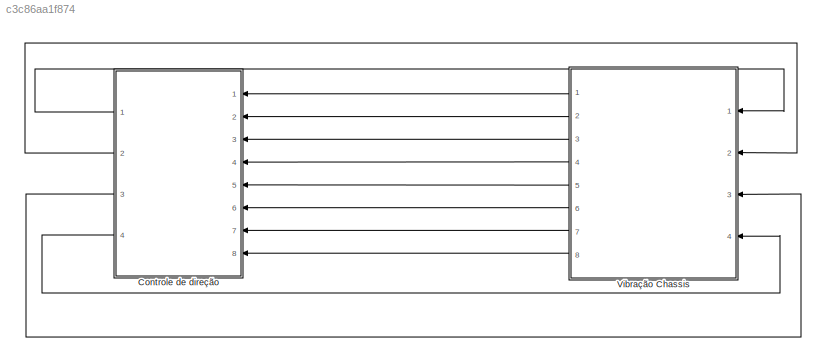
MODEL slx_c3c86aa1f874
KIND model
CONFIG AbsTol = auto
CONFIG FixedStep = 1e-3
CONFIG MaxStep = 0.0001
CONFIG MinStep = auto
CONFIG RelTol = 1e-19
CONFIG SampleTimeConstraint = Unconstrained
CONFIG Solver = ode45
CONFIG SolverMode = Auto
CONFIG SolverName = ode45
CONFIG StartTime = 0
CONFIG StopTime = 6
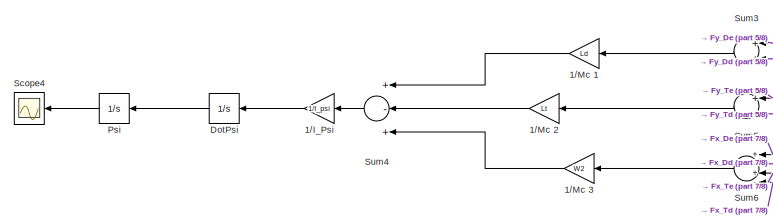
[diagram: Controle de direção  - part 1/8, top left region]
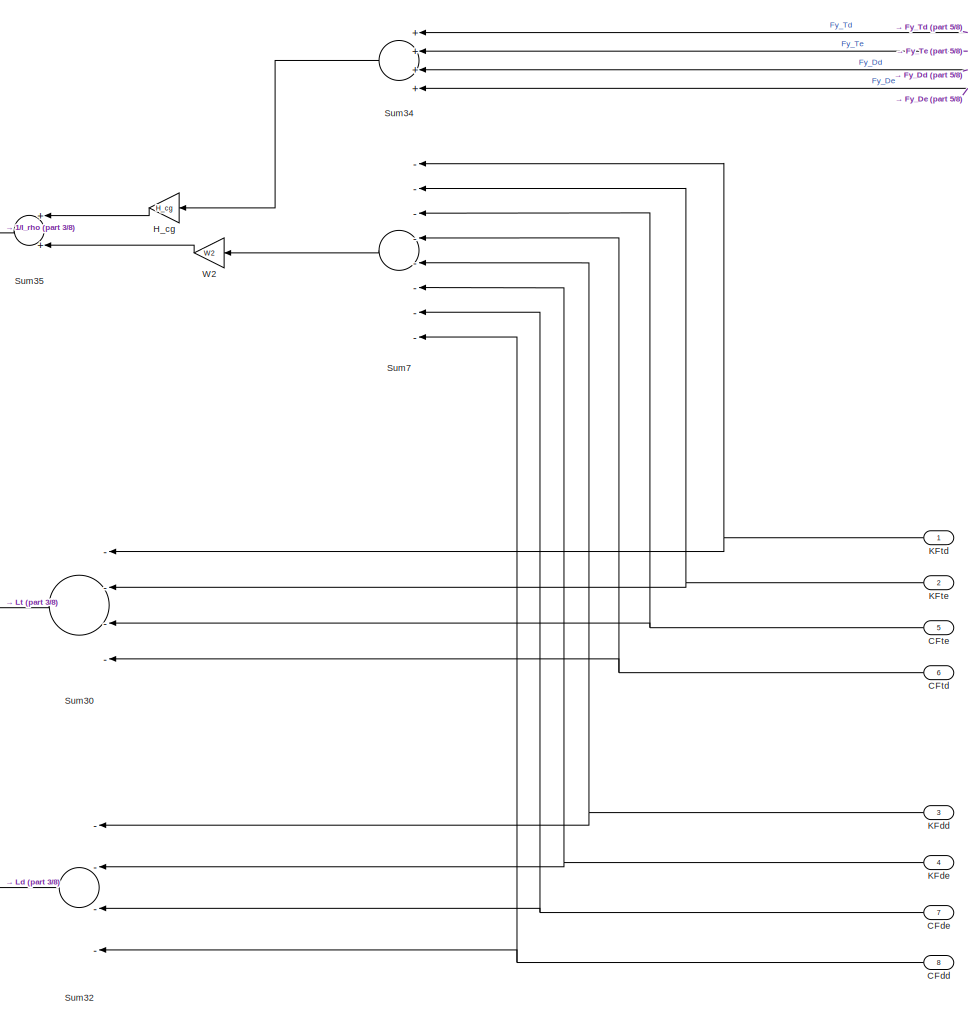
[diagram: Controle de direção  - part 2/8, middle left region]
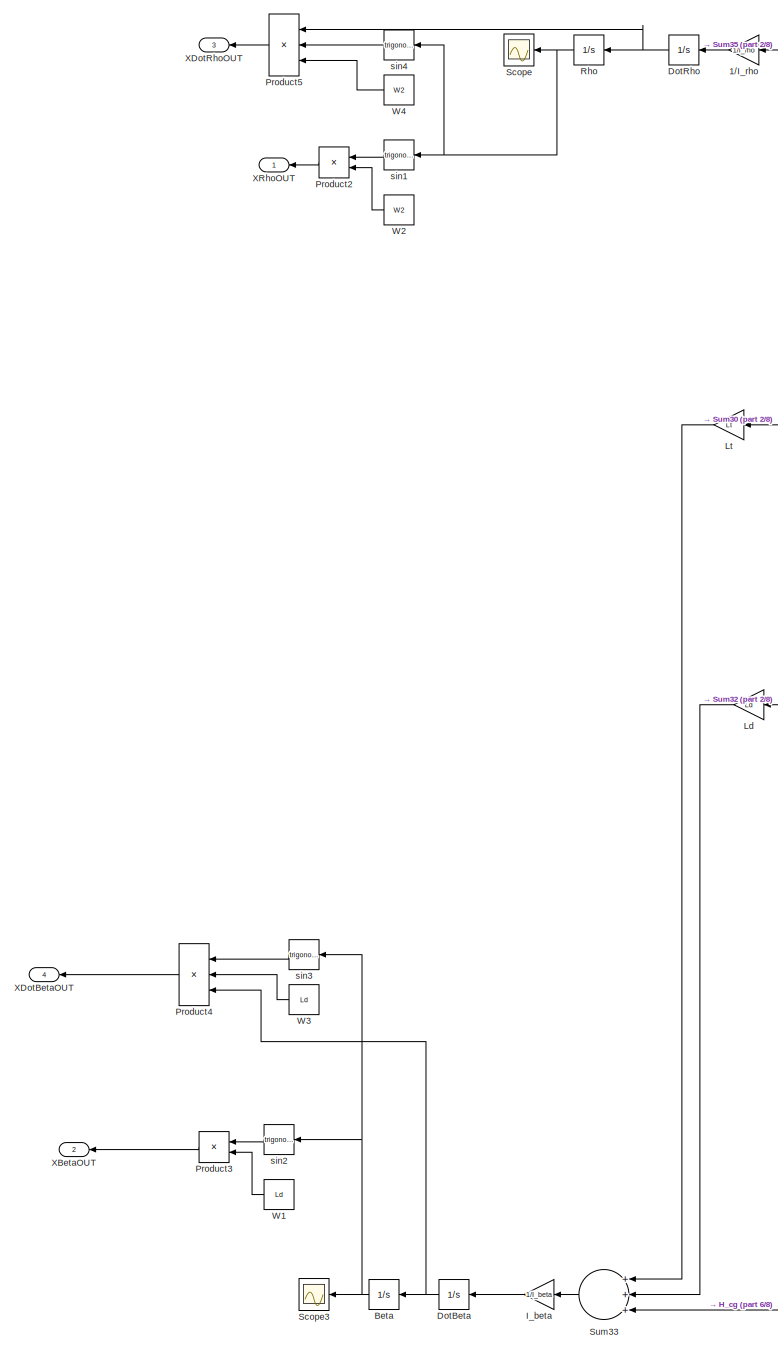
[diagram: Controle de direção  - part 3/8, middle left region]
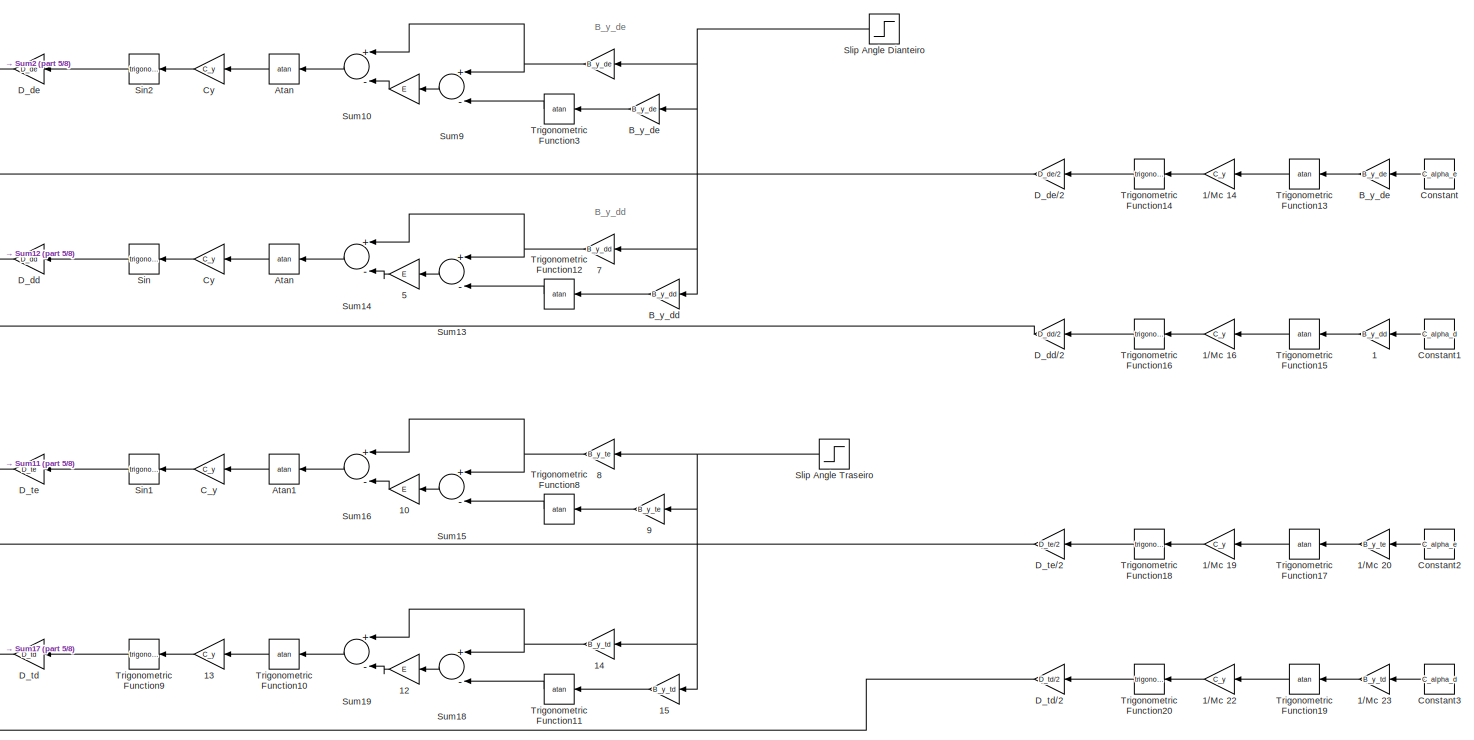
[diagram: Controle de direção  - part 4/8, middle right region]
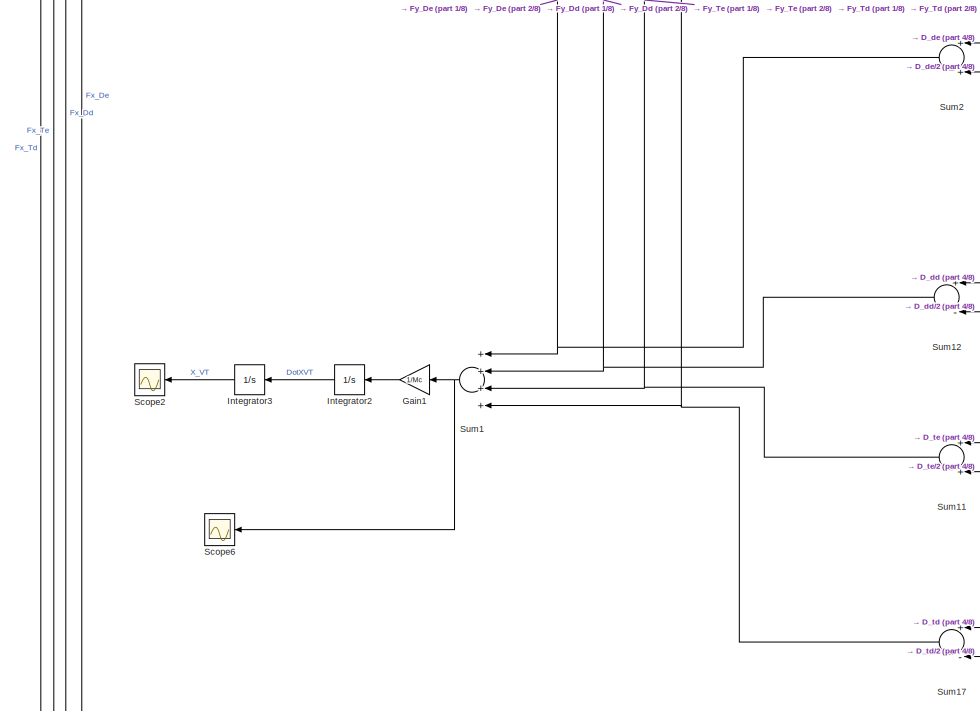
[diagram: Controle de direção  - part 5/8, central region]
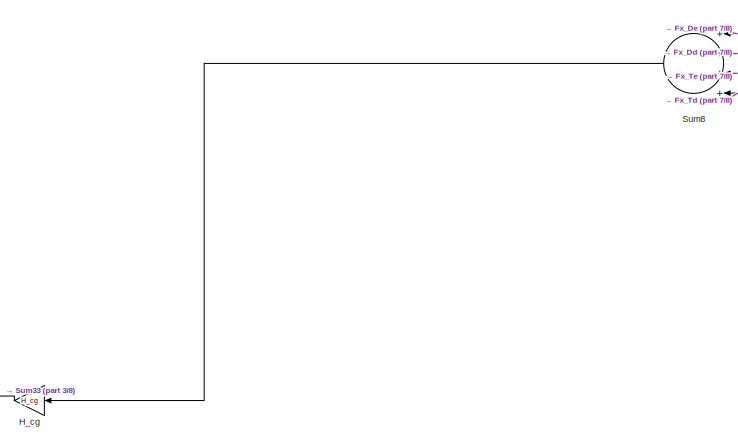
[diagram: Controle de direção  - part 6/8, bottom left region]
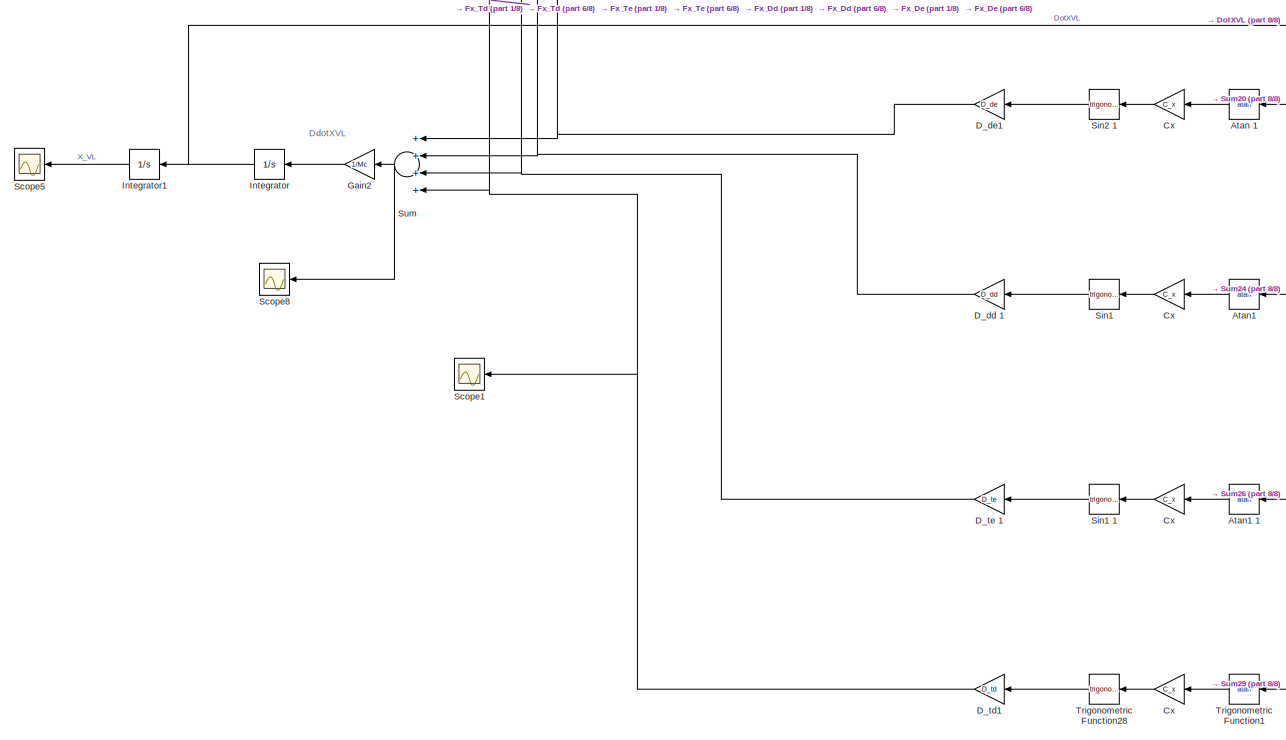
[diagram: Controle de direção  - part 7/8, bottom center region]
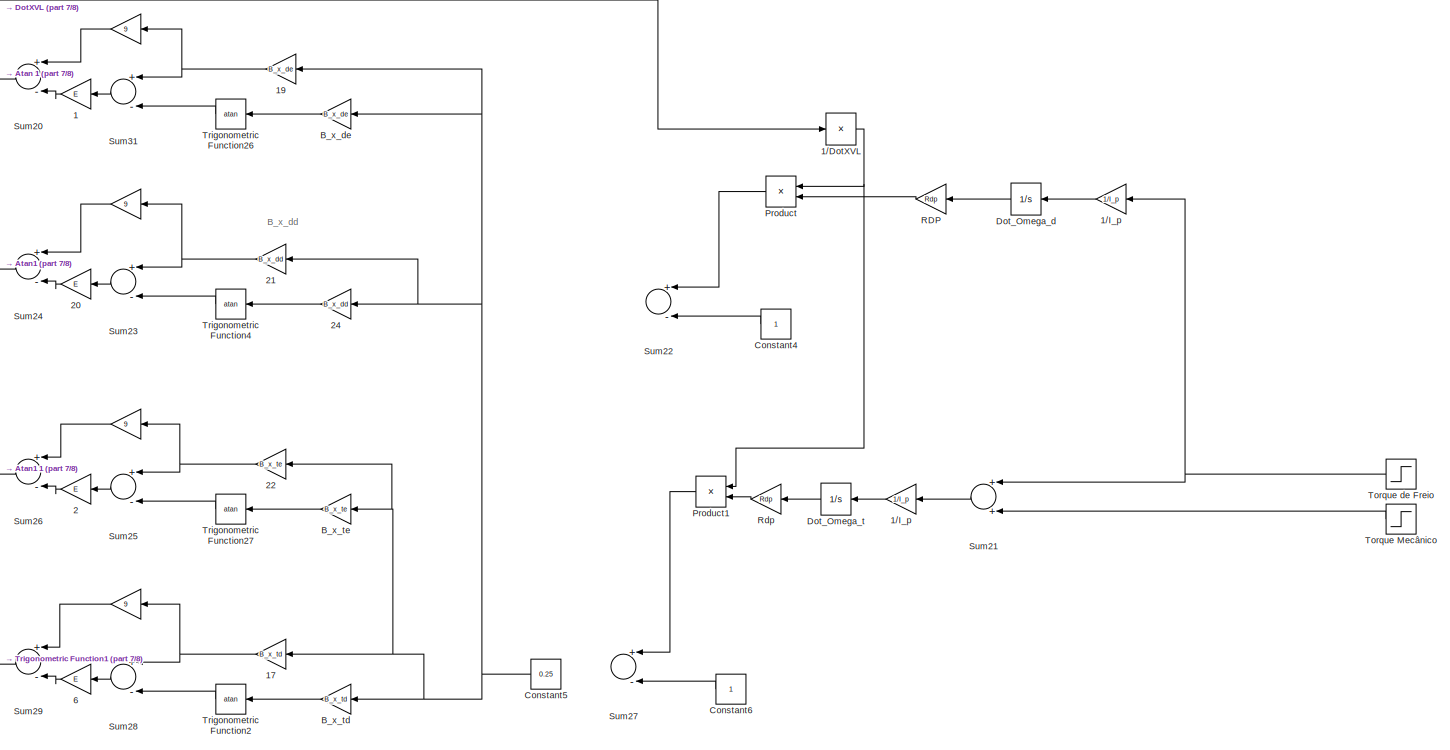
[diagram: Controle de direção  - part 8/8, bottom right region]
BLOCK [SubSystem] Controle de direção 
  Ports = [8, 4]
  RequestExecContextInheritance = off
BLOCK [Gain] Controle de direção / 
  Gain = 9
  OutDataTypeStr = Inherit: Inherit via internal rule
  ParamDataTypeStr = Inherit: Inherit via internal rule
  SaturateOnIntegerOverflow = off
BLOCK [Gain] Controle de direção /       
  Gain = B_y_de
  OutDataTypeStr = Inherit: Inherit via internal rule
  ParamDataTypeStr = Inherit: Inherit via internal rule
  SaturateOnIntegerOverflow = off
BLOCK [Gain] Controle de direção / 1
  Gain = E
  OutDataTypeStr = Inherit: Inherit via internal rule
  ParamDataTypeStr = Inherit: Inherit via internal rule
  SaturateOnIntegerOverflow = off
BLOCK [Gain] Controle de direção / 1//I_p
  Gain = 1/I_p
  OutDataTypeStr = Inherit: Inherit via internal rule
  ParamDataTypeStr = Inherit: Inherit via internal rule
  SaturateOnIntegerOverflow = off
BLOCK [Gain] Controle de direção / 1//I_p 
  Gain = 1/I_p
  OutDataTypeStr = Inherit: Inherit via internal rule
  ParamDataTypeStr = Inherit: Inherit via internal rule
  SaturateOnIntegerOverflow = off
BLOCK [Gain] Controle de direção / 1//I_rho 
  Gain = 1/I_rho
  OutDataTypeStr = Inherit: Inherit via internal rule
  ParamDataTypeStr = Inherit: Inherit via internal rule
  SaturateOnIntegerOverflow = off
BLOCK [Gain] Controle de direção / 10
  Gain = E
  OutDataTypeStr = Inherit: Inherit via internal rule
  ParamDataTypeStr = Inherit: Inherit via internal rule
  SaturateOnIntegerOverflow = off
BLOCK [Gain] Controle de direção / 12
  Gain = E
  OutDataTypeStr = Inherit: Inherit via internal rule
  ParamDataTypeStr = Inherit: Inherit via internal rule
  SaturateOnIntegerOverflow = off
BLOCK [Gain] Controle de direção / 13
  Gain = C_y
  OutDataTypeStr = Inherit: Inherit via internal rule
  ParamDataTypeStr = Inherit: Inherit via internal rule
  SaturateOnIntegerOverflow = off
BLOCK [Gain] Controle de direção / 14
  Gain = B_y_td
  OutDataTypeStr = Inherit: Inherit via internal rule
  ParamDataTypeStr = Inherit: Inherit via internal rule
  SaturateOnIntegerOverflow = off
BLOCK [Gain] Controle de direção / 15
  Gain = B_y_td
  OutDataTypeStr = Inherit: Inherit via internal rule
  ParamDataTypeStr = Inherit: Inherit via internal rule
  SaturateOnIntegerOverflow = off
BLOCK [Gain] Controle de direção / 17
  Gain = B_x_td
  OutDataTypeStr = Inherit: Inherit via internal rule
  ParamDataTypeStr = Inherit: Inherit via internal rule
  SaturateOnIntegerOverflow = off
BLOCK [Gain] Controle de direção / 19
  Gain = B_x_de
  OutDataTypeStr = Inherit: Inherit via internal rule
  ParamDataTypeStr = Inherit: Inherit via internal rule
  SaturateOnIntegerOverflow = off
BLOCK [Gain] Controle de direção / 2
  Gain = E
  OutDataTypeStr = Inherit: Inherit via internal rule
  ParamDataTypeStr = Inherit: Inherit via internal rule
  SaturateOnIntegerOverflow = off
BLOCK [Gain] Controle de direção / 20
  Gain = E
  OutDataTypeStr = Inherit: Inherit via internal rule
  ParamDataTypeStr = Inherit: Inherit via internal rule
  SaturateOnIntegerOverflow = off
BLOCK [Gain] Controle de direção / 21
  Gain = B_x_dd
  OutDataTypeStr = Inherit: Inherit via internal rule
  ParamDataTypeStr = Inherit: Inherit via internal rule
  SaturateOnIntegerOverflow = off
BLOCK [Gain] Controle de direção / 22
  Gain = B_x_te
  OutDataTypeStr = Inherit: Inherit via internal rule
  ParamDataTypeStr = Inherit: Inherit via internal rule
  SaturateOnIntegerOverflow = off
BLOCK [Gain] Controle de direção / 24
  Gain = B_x_dd
  OutDataTypeStr = Inherit: Inherit via internal rule
  ParamDataTypeStr = Inherit: Inherit via internal rule
  SaturateOnIntegerOverflow = off
BLOCK [Gain] Controle de direção / 5
  Gain = E
  OutDataTypeStr = Inherit: Inherit via internal rule
  ParamDataTypeStr = Inherit: Inherit via internal rule
  SaturateOnIntegerOverflow = off
BLOCK [Gain] Controle de direção / 6
  Gain = E
  OutDataTypeStr = Inherit: Inherit via internal rule
  ParamDataTypeStr = Inherit: Inherit via internal rule
  SaturateOnIntegerOverflow = off
BLOCK [Gain] Controle de direção / 7
  Gain = B_y_dd
  OutDataTypeStr = Inherit: Inherit via internal rule
  ParamDataTypeStr = Inherit: Inherit via internal rule
  SaturateOnIntegerOverflow = off
BLOCK [Gain] Controle de direção / 8
  Gain = B_y_te
  OutDataTypeStr = Inherit: Inherit via internal rule
  ParamDataTypeStr = Inherit: Inherit via internal rule
  SaturateOnIntegerOverflow = off
BLOCK [Gain] Controle de direção / 9
  Gain = B_y_te
  OutDataTypeStr = Inherit: Inherit via internal rule
  ParamDataTypeStr = Inherit: Inherit via internal rule
  SaturateOnIntegerOverflow = off
BLOCK [Gain] Controle de direção / B_x_de 
  Gain = B_x_de
  OutDataTypeStr = Inherit: Inherit via internal rule
  ParamDataTypeStr = Inherit: Inherit via internal rule
  SaturateOnIntegerOverflow = off
BLOCK [Gain] Controle de direção / B_x_td
  Gain = B_x_td
  OutDataTypeStr = Inherit: Inherit via internal rule
  ParamDataTypeStr = Inherit: Inherit via internal rule
  SaturateOnIntegerOverflow = off
BLOCK [Gain] Controle de direção / B_x_te
  Gain = B_x_te
  OutDataTypeStr = Inherit: Inherit via internal rule
  ParamDataTypeStr = Inherit: Inherit via internal rule
  SaturateOnIntegerOverflow = off
BLOCK [Gain] Controle de direção / B_y_de
  Gain = B_y_de
  OutDataTypeStr = Inherit: Inherit via internal rule
  ParamDataTypeStr = Inherit: Inherit via internal rule
  SaturateOnIntegerOverflow = off
BLOCK [Gain] Controle de direção / C_y
  Gain = C_y
  OutDataTypeStr = Inherit: Inherit via internal rule
  ParamDataTypeStr = Inherit: Inherit via internal rule
  SaturateOnIntegerOverflow = off
BLOCK [Gain] Controle de direção / Cx
  Gain = C_x
  OutDataTypeStr = Inherit: Inherit via internal rule
  ParamDataTypeStr = Inherit: Inherit via internal rule
  SaturateOnIntegerOverflow = off
BLOCK [Gain] Controle de direção / Cy
  Gain = C_y
  OutDataTypeStr = Inherit: Inherit via internal rule
  ParamDataTypeStr = Inherit: Inherit via internal rule
  SaturateOnIntegerOverflow = off
BLOCK [Gain] Controle de direção / Cy 
  Gain = C_y
  OutDataTypeStr = Inherit: Inherit via internal rule
  ParamDataTypeStr = Inherit: Inherit via internal rule
  SaturateOnIntegerOverflow = off
BLOCK [Gain] Controle de direção / RDP
  Gain = Rdp
  OutDataTypeStr = Inherit: Inherit via internal rule
  ParamDataTypeStr = Inherit: Inherit via internal rule
  SaturateOnIntegerOverflow = off
BLOCK [Gain] Controle de direção / Rdp
  Gain = Rdp
  OutDataTypeStr = Inherit: Inherit via internal rule
  ParamDataTypeStr = Inherit: Inherit via internal rule
  SaturateOnIntegerOverflow = off
BLOCK [Gain] Controle de direção /1
  Gain = B_y_dd
  OutDataTypeStr = Inherit: Inherit via internal rule
  ParamDataTypeStr = Inherit: Inherit via internal rule
  SaturateOnIntegerOverflow = off
BLOCK [Product] Controle de direção /1//DotXVL
  InputSameDT = off
  Inputs = /
  OutDataTypeStr = Inherit: Inherit via internal rule
  Ports = [1, 1]
  RndMeth = Floor
  SaturateOnIntegerOverflow = off
BLOCK [Gain] Controle de direção /1//I_Psi 
  Gain = 1/I_psi
  OutDataTypeStr = Inherit: Inherit via internal rule
  ParamDataTypeStr = Inherit: Inherit via internal rule
  SaturateOnIntegerOverflow = off
BLOCK [Gain] Controle de direção /1//Mc 1
  Gain = Ld
  OutDataTypeStr = Inherit: Inherit via internal rule
  ParamDataTypeStr = Inherit: Inherit via internal rule
  SaturateOnIntegerOverflow = off
BLOCK [Gain] Controle de direção /1//Mc 14
  Gain = C_y
  OutDataTypeStr = Inherit: Inherit via internal rule
  ParamDataTypeStr = Inherit: Inherit via internal rule
  SaturateOnIntegerOverflow = off
BLOCK [Gain] Controle de direção /1//Mc 16
  Gain = C_y
  OutDataTypeStr = Inherit: Inherit via internal rule
  ParamDataTypeStr = Inherit: Inherit via internal rule
  SaturateOnIntegerOverflow = off
BLOCK [Gain] Controle de direção /1//Mc 19
  Gain = C_y
  OutDataTypeStr = Inherit: Inherit via internal rule
  ParamDataTypeStr = Inherit: Inherit via internal rule
  SaturateOnIntegerOverflow = off
BLOCK [Gain] Controle de direção /1//Mc 2
  Gain = Lt
  OutDataTypeStr = Inherit: Inherit via internal rule
  ParamDataTypeStr = Inherit: Inherit via internal rule
  SaturateOnIntegerOverflow = off
BLOCK [Gain] Controle de direção /1//Mc 20
  Gain = B_y_te
  OutDataTypeStr = Inherit: Inherit via internal rule
  ParamDataTypeStr = Inherit: Inherit via internal rule
  SaturateOnIntegerOverflow = off
BLOCK [Gain] Controle de direção /1//Mc 22
  Gain = C_y
  OutDataTypeStr = Inherit: Inherit via internal rule
  ParamDataTypeStr = Inherit: Inherit via internal rule
  SaturateOnIntegerOverflow = off
BLOCK [Gain] Controle de direção /1//Mc 23
  Gain = B_y_td
  OutDataTypeStr = Inherit: Inherit via internal rule
  ParamDataTypeStr = Inherit: Inherit via internal rule
  SaturateOnIntegerOverflow = off
BLOCK [Gain] Controle de direção /1//Mc 3
  Gain = W2
  OutDataTypeStr = Inherit: Inherit via internal rule
  ParamDataTypeStr = Inherit: Inherit via internal rule
  SaturateOnIntegerOverflow = off
BLOCK [Trigonometry] Controle de direção /Atan
  Operator = atan
  Ports = [1, 1]
BLOCK [Trigonometry] Controle de direção /Atan 
  Operator = atan
  Ports = [1, 1]
BLOCK [Trigonometry] Controle de direção /Atan 1
  Operator = atan
  Ports = [1, 1]
BLOCK [Trigonometry] Controle de direção /Atan1
  Operator = atan
  Ports = [1, 1]
BLOCK [Trigonometry] Controle de direção /Atan1 
  Operator = atan
  Ports = [1, 1]
BLOCK [Trigonometry] Controle de direção /Atan1 1
  Operator = atan
  Ports = [1, 1]
BLOCK [Gain] Controle de direção /B_y_dd
  Gain = B_y_dd
  OutDataTypeStr = Inherit: Inherit via internal rule
  ParamDataTypeStr = Inherit: Inherit via internal rule
  SaturateOnIntegerOverflow = off
BLOCK [Gain] Controle de direção /B_y_de
  Gain = B_y_de
  OutDataTypeStr = Inherit: Inherit via internal rule
  ParamDataTypeStr = Inherit: Inherit via internal rule
  SaturateOnIntegerOverflow = off
BLOCK [Integrator] Controle de direção /Beta
  Ports = [1, 1]
BLOCK [Inport] Controle de direção /CFdd 
  IconDisplay = Port number
  Port = 8
BLOCK [Inport] Controle de direção /CFde 
  IconDisplay = Port number
  Port = 7
BLOCK [Inport] Controle de direção /CFtd 
  IconDisplay = Port number
  Port = 6
BLOCK [Inport] Controle de direção /CFte 
  IconDisplay = Port number
  Port = 5
BLOCK [Constant] Controle de direção /Constant
  Value = C_alpha_e
BLOCK [Constant] Controle de direção /Constant1
  Value = C_alpha_d
BLOCK [Constant] Controle de direção /Constant2
  Value = C_alpha_e
BLOCK [Constant] Controle de direção /Constant3
  Value = C_alpha_d
BLOCK [Constant] Controle de direção /Constant4
BLOCK [Constant] Controle de direção /Constant5
  Value = 0.25
BLOCK [Constant] Controle de direção /Constant6
BLOCK [Gain] Controle de direção /D_dd 
  Gain = D_dd
  OutDataTypeStr = Inherit: Inherit via internal rule
  ParamDataTypeStr = Inherit: Inherit via internal rule
  SaturateOnIntegerOverflow = off
BLOCK [Gain] Controle de direção /D_dd 1
  Gain = D_dd
  OutDataTypeStr = Inherit: Inherit via internal rule
  ParamDataTypeStr = Inherit: Inherit via internal rule
  SaturateOnIntegerOverflow = off
BLOCK [Gain] Controle de direção /D_dd//2
  Gain = D_dd/2
  OutDataTypeStr = Inherit: Inherit via internal rule
  ParamDataTypeStr = Inherit: Inherit via internal rule
  SaturateOnIntegerOverflow = off
BLOCK [Gain] Controle de direção /D_de
  Gain = D_de
  OutDataTypeStr = Inherit: Inherit via internal rule
  ParamDataTypeStr = Inherit: Inherit via internal rule
  SaturateOnIntegerOverflow = off
BLOCK [Gain] Controle de direção /D_de//2
  Gain = D_de/2
  OutDataTypeStr = Inherit: Inherit via internal rule
  ParamDataTypeStr = Inherit: Inherit via internal rule
  SaturateOnIntegerOverflow = off
BLOCK [Gain] Controle de direção /D_de1
  Gain = D_de
  OutDataTypeStr = Inherit: Inherit via internal rule
  ParamDataTypeStr = Inherit: Inherit via internal rule
  SaturateOnIntegerOverflow = off
BLOCK [Gain] Controle de direção /D_td
  Gain = D_td
  OutDataTypeStr = Inherit: Inherit via internal rule
  ParamDataTypeStr = Inherit: Inherit via internal rule
  SaturateOnIntegerOverflow = off
BLOCK [Gain] Controle de direção /D_td//2
  Gain = D_td/2
  OutDataTypeStr = Inherit: Inherit via internal rule
  ParamDataTypeStr = Inherit: Inherit via internal rule
  SaturateOnIntegerOverflow = off
BLOCK [Gain] Controle de direção /D_td1
  Gain = D_td
  OutDataTypeStr = Inherit: Inherit via internal rule
  ParamDataTypeStr = Inherit: Inherit via internal rule
  SaturateOnIntegerOverflow = off
BLOCK [Gain] Controle de direção /D_te 
  Gain = D_te
  OutDataTypeStr = Inherit: Inherit via internal rule
  ParamDataTypeStr = Inherit: Inherit via internal rule
  SaturateOnIntegerOverflow = off
BLOCK [Gain] Controle de direção /D_te 1
  Gain = D_te
  OutDataTypeStr = Inherit: Inherit via internal rule
  ParamDataTypeStr = Inherit: Inherit via internal rule
  SaturateOnIntegerOverflow = off
BLOCK [Gain] Controle de direção /D_te//2
  Gain = D_te/2
  OutDataTypeStr = Inherit: Inherit via internal rule
  ParamDataTypeStr = Inherit: Inherit via internal rule
  SaturateOnIntegerOverflow = off
BLOCK [Integrator] Controle de direção /DotBeta
  Ports = [1, 1]
BLOCK [Integrator] Controle de direção /DotPsi
  Ports = [1, 1]
BLOCK [Integrator] Controle de direção /DotRho
  Ports = [1, 1]
BLOCK [Integrator] Controle de direção /Dot_Omega_d
  Ports = [1, 1]
BLOCK [Integrator] Controle de direção /Dot_Omega_t
  Ports = [1, 1]
BLOCK [Gain] Controle de direção /Gain1
  Gain = 1/Mc
  OutDataTypeStr = Inherit: Inherit via internal rule
  ParamDataTypeStr = Inherit: Inherit via internal rule
  SaturateOnIntegerOverflow = off
BLOCK [Gain] Controle de direção /Gain2
  Gain = 1/Mc
  OutDataTypeStr = Inherit: Inherit via internal rule
  ParamDataTypeStr = Inherit: Inherit via internal rule
  SaturateOnIntegerOverflow = off
BLOCK [Gain] Controle de direção /H_cg 
  Gain = H_cg
  OutDataTypeStr = Inherit: Inherit via internal rule
  ParamDataTypeStr = Inherit: Inherit via internal rule
  SaturateOnIntegerOverflow = off
BLOCK [Gain] Controle de direção /H_cg   
  Gain = H_cg
  OutDataTypeStr = Inherit: Inherit via internal rule
  ParamDataTypeStr = Inherit: Inherit via internal rule
  SaturateOnIntegerOverflow = off
BLOCK [Gain] Controle de direção /I_beta 
  Gain = 1/I_beta
  OutDataTypeStr = Inherit: Inherit via internal rule
  ParamDataTypeStr = Inherit: Inherit via internal rule
  SaturateOnIntegerOverflow = off
BLOCK [Integrator] Controle de direção /Integrator
  InitialCondition = 1
  Ports = [1, 1]
BLOCK [Integrator] Controle de direção /Integrator1
  Ports = [1, 1]
BLOCK [Integrator] Controle de direção /Integrator2
  Ports = [1, 1]
BLOCK [Integrator] Controle de direção /Integrator3
  Ports = [1, 1]
BLOCK [Inport] Controle de direção /KFdd
  IconDisplay = Port number
  Port = 3
BLOCK [Inport] Controle de direção /KFde
  IconDisplay = Port number
  Port = 4
BLOCK [Inport] Controle de direção /KFtd 
  IconDisplay = Port number
BLOCK [Inport] Controle de direção /KFte 
  IconDisplay = Port number
  Port = 2
BLOCK [Gain] Controle de direção /Ld 
  Gain = Ld
  OutDataTypeStr = Inherit: Inherit via internal rule
  ParamDataTypeStr = Inherit: Inherit via internal rule
  SaturateOnIntegerOverflow = off
BLOCK [Gain] Controle de direção /Lt 
  Gain = Lt
  OutDataTypeStr = Inherit: Inherit via internal rule
  ParamDataTypeStr = Inherit: Inherit via internal rule
  SaturateOnIntegerOverflow = off
BLOCK [Product] Controle de direção /Product
  InputSameDT = off
  OutDataTypeStr = Inherit: Inherit via internal rule
  Ports = [2, 1]
  RndMeth = Floor
  SaturateOnIntegerOverflow = off
BLOCK [Product] Controle de direção /Product1
  InputSameDT = off
  OutDataTypeStr = Inherit: Inherit via internal rule
  Ports = [2, 1]
  RndMeth = Floor
  SaturateOnIntegerOverflow = off
BLOCK [Product] Controle de direção /Product2
  InputSameDT = off
  OutDataTypeStr = Inherit: Inherit via internal rule
  Ports = [2, 1]
  RndMeth = Floor
  SaturateOnIntegerOverflow = off
BLOCK [Product] Controle de direção /Product3
  InputSameDT = off
  OutDataTypeStr = Inherit: Inherit via internal rule
  Ports = [2, 1]
  RndMeth = Floor
  SaturateOnIntegerOverflow = off
BLOCK [Product] Controle de direção /Product4
  InputSameDT = off
  Inputs = 3
  OutDataTypeStr = Inherit: Inherit via internal rule
  Ports = [3, 1]
  RndMeth = Floor
  SaturateOnIntegerOverflow = off
BLOCK [Product] Controle de direção /Product5
  InputSameDT = off
  Inputs = 3
  OutDataTypeStr = Inherit: Inherit via internal rule
  Ports = [3, 1]
  RndMeth = Floor
  SaturateOnIntegerOverflow = off
BLOCK [Integrator] Controle de direção /Psi
  Ports = [1, 1]
BLOCK [Integrator] Controle de direção /Rho
  Ports = [1, 1]
BLOCK [Scope] Controle de direção /Scope
  Floating = off
  NumInputPorts = 1
  Ports = [1]
  SaveName = ScopeData3
  ZoomMode = yonly
BLOCK [Scope] Controle de direção /Scope1
  Floating = off
  NumInputPorts = 1
  Ports = [1]
  SaveName = ScopeData2
  YMax = 1000
  YMin = -1000
BLOCK [Scope] Controle de direção /Scope2
  Floating = off
  NumInputPorts = 1
  Ports = [1]
  SaveName = ScopeData9
BLOCK [Scope] Controle de direção /Scope3
  Floating = off
  NumInputPorts = 1
  Ports = [1]
  SaveName = ScopeData6
BLOCK [Scope] Controle de direção /Scope4
  Floating = off
  NumInputPorts = 1
  Ports = [1]
  SaveName = ScopeData7
  TimeRange = 4.999000000000002
  YMax = 2.2
  YMin = 1.8
  ZoomMode = yonly
BLOCK [Scope] Controle de direção /Scope5
  Floating = off
  NumInputPorts = 1
  Ports = [1]
  SaveName = ScopeData8
  YMax = 0
  YMin = -11000
BLOCK [Scope] Controle de direção /Scope6
  Floating = off
  NumInputPorts = 1
  Ports = [1]
  SaveName = ScopeData4
  YMax = 65
  YMin = 0
BLOCK [Scope] Controle de direção /Scope8
  Floating = off
  NumInputPorts = 1
  Ports = [1]
  SaveName = ScopeData10
  YMax = -3982.53
  YMin = -3982.53
BLOCK [Trigonometry] Controle de direção /Sin
  Ports = [1, 1]
BLOCK [Trigonometry] Controle de direção /Sin1
  Ports = [1, 1]
BLOCK [Trigonometry] Controle de direção /Sin1 
  Ports = [1, 1]
BLOCK [Trigonometry] Controle de direção /Sin1 1
  Ports = [1, 1]
BLOCK [Trigonometry] Controle de direção /Sin2 
  Ports = [1, 1]
BLOCK [Trigonometry] Controle de direção /Sin2 1
  Ports = [1, 1]
BLOCK [Step] Controle de direção /Slip Angle Dianteiro 
  After = 9
  SampleTime = 0
  Time = 5
BLOCK [Step] Controle de direção /Slip Angle Traseiro 
  SampleTime = 0
  Time = 5
BLOCK [Sum] Controle de direção /Sum
  InputSameDT = off
  Inputs = ++++
  OutDataTypeStr = Inherit: Inherit via internal rule
  Ports = [4, 1]
  SaturateOnIntegerOverflow = off
BLOCK [Sum] Controle de direção /Sum1
  InputSameDT = off
  Inputs = ++++
  OutDataTypeStr = Inherit: Inherit via internal rule
  Ports = [4, 1]
  SaturateOnIntegerOverflow = off
BLOCK [Sum] Controle de direção /Sum10
  InputSameDT = off
  Inputs = +-
  OutDataTypeStr = Inherit: Inherit via internal rule
  Ports = [2, 1]
  SaturateOnIntegerOverflow = off
BLOCK [Sum] Controle de direção /Sum11
  InputSameDT = off
  OutDataTypeStr = Inherit: Inherit via internal rule
  Ports = [2, 1]
  SaturateOnIntegerOverflow = off
BLOCK [Sum] Controle de direção /Sum12
  InputSameDT = off
  Inputs = +-
  OutDataTypeStr = Inherit: Inherit via internal rule
  Ports = [2, 1]
  SaturateOnIntegerOverflow = off
BLOCK [Sum] Controle de direção /Sum13
  InputSameDT = off
  Inputs = +-
  OutDataTypeStr = Inherit: Inherit via internal rule
  Ports = [2, 1]
  SaturateOnIntegerOverflow = off
BLOCK [Sum] Controle de direção /Sum14
  InputSameDT = off
  Inputs = +-
  OutDataTypeStr = Inherit: Inherit via internal rule
  Ports = [2, 1]
  SaturateOnIntegerOverflow = off
BLOCK [Sum] Controle de direção /Sum15
  InputSameDT = off
  Inputs = +-
  OutDataTypeStr = Inherit: Inherit via internal rule
  Ports = [2, 1]
  SaturateOnIntegerOverflow = off
BLOCK [Sum] Controle de direção /Sum16
  InputSameDT = off
  Inputs = +-
  OutDataTypeStr = Inherit: Inherit via internal rule
  Ports = [2, 1]
  SaturateOnIntegerOverflow = off
BLOCK [Sum] Controle de direção /Sum17
  InputSameDT = off
  Inputs = +-
  OutDataTypeStr = Inherit: Inherit via internal rule
  Ports = [2, 1]
  SaturateOnIntegerOverflow = off
BLOCK [Sum] Controle de direção /Sum18
  InputSameDT = off
  Inputs = +-
  OutDataTypeStr = Inherit: Inherit via internal rule
  Ports = [2, 1]
  SaturateOnIntegerOverflow = off
BLOCK [Sum] Controle de direção /Sum19
  InputSameDT = off
  Inputs = +-
  OutDataTypeStr = Inherit: Inherit via internal rule
  Ports = [2, 1]
  SaturateOnIntegerOverflow = off
BLOCK [Sum] Controle de direção /Sum2
  InputSameDT = off
  OutDataTypeStr = Inherit: Inherit via internal rule
  Ports = [2, 1]
  SaturateOnIntegerOverflow = off
BLOCK [Sum] Controle de direção /Sum20
  InputSameDT = off
  Inputs = +-
  OutDataTypeStr = Inherit: Inherit via internal rule
  Ports = [2, 1]
  SaturateOnIntegerOverflow = off
BLOCK [Sum] Controle de direção /Sum21
  InputSameDT = off
  OutDataTypeStr = Inherit: Inherit via internal rule
  Ports = [2, 1]
  SaturateOnIntegerOverflow = off
BLOCK [Sum] Controle de direção /Sum22
  InputSameDT = off
  Inputs = +-
  OutDataTypeStr = Inherit: Inherit via internal rule
  Ports = [2, 1]
  SaturateOnIntegerOverflow = off
BLOCK [Sum] Controle de direção /Sum23
  InputSameDT = off
  Inputs = +-
  OutDataTypeStr = Inherit: Inherit via internal rule
  Ports = [2, 1]
  SaturateOnIntegerOverflow = off
BLOCK [Sum] Controle de direção /Sum24
  InputSameDT = off
  Inputs = +-
  OutDataTypeStr = Inherit: Inherit via internal rule
  Ports = [2, 1]
  SaturateOnIntegerOverflow = off
BLOCK [Sum] Controle de direção /Sum25
  InputSameDT = off
  Inputs = +-
  OutDataTypeStr = Inherit: Inherit via internal rule
  Ports = [2, 1]
  SaturateOnIntegerOverflow = off
BLOCK [Sum] Controle de direção /Sum26
  InputSameDT = off
  Inputs = +-
  OutDataTypeStr = Inherit: Inherit via internal rule
  Ports = [2, 1]
  SaturateOnIntegerOverflow = off
BLOCK [Sum] Controle de direção /Sum27
  InputSameDT = off
  Inputs = +-
  OutDataTypeStr = Inherit: Inherit via internal rule
  Ports = [2, 1]
  SaturateOnIntegerOverflow = off
BLOCK [Sum] Controle de direção /Sum28
  InputSameDT = off
  Inputs = +-
  OutDataTypeStr = Inherit: Inherit via internal rule
  Ports = [2, 1]
  SaturateOnIntegerOverflow = off
BLOCK [Sum] Controle de direção /Sum29
  InputSameDT = off
  Inputs = +-
  OutDataTypeStr = Inherit: Inherit via internal rule
  Ports = [2, 1]
  SaturateOnIntegerOverflow = off
BLOCK [Sum] Controle de direção /Sum3
  InputSameDT = off
  OutDataTypeStr = Inherit: Inherit via internal rule
  Ports = [2, 1]
  SaturateOnIntegerOverflow = off
BLOCK [Sum] Controle de direção /Sum30
  InputSameDT = off
  Inputs = ----
  OutDataTypeStr = Inherit: Inherit via internal rule
  Ports = [4, 1]
  SaturateOnIntegerOverflow = off
BLOCK [Sum] Controle de direção /Sum31
  InputSameDT = off
  Inputs = +-
  OutDataTypeStr = Inherit: Inherit via internal rule
  Ports = [2, 1]
  SaturateOnIntegerOverflow = off
BLOCK [Sum] Controle de direção /Sum32
  InputSameDT = off
  Inputs = ----
  OutDataTypeStr = Inherit: Inherit via internal rule
  Ports = [4, 1]
  SaturateOnIntegerOverflow = off
BLOCK [Sum] Controle de direção /Sum33
  InputSameDT = off
  Inputs = +++
  OutDataTypeStr = Inherit: Inherit via internal rule
  Ports = [3, 1]
  SaturateOnIntegerOverflow = off
BLOCK [Sum] Controle de direção /Sum34
  InputSameDT = off
  Inputs = ++++
  OutDataTypeStr = Inherit: Inherit via internal rule
  Ports = [4, 1]
  SaturateOnIntegerOverflow = off
BLOCK [Sum] Controle de direção /Sum35
  InputSameDT = off
  OutDataTypeStr = Inherit: Inherit via internal rule
  Ports = [2, 1]
  SaturateOnIntegerOverflow = off
BLOCK [Sum] Controle de direção /Sum4
  InputSameDT = off
  Inputs = +-+
  OutDataTypeStr = Inherit: Inherit via internal rule
  Ports = [3, 1]
  SaturateOnIntegerOverflow = off
BLOCK [Sum] Controle de direção /Sum5
  InputSameDT = off
  OutDataTypeStr = Inherit: Inherit via internal rule
  Ports = [2, 1]
  SaturateOnIntegerOverflow = off
BLOCK [Sum] Controle de direção /Sum6
  InputSameDT = off
  Inputs = +-+-
  OutDataTypeStr = Inherit: Inherit via internal rule
  Ports = [4, 1]
  SaturateOnIntegerOverflow = off
BLOCK [Sum] Controle de direção /Sum7
  InputSameDT = off
  Inputs = --------
  OutDataTypeStr = Inherit: Inherit via internal rule
  Ports = [8, 1]
  SaturateOnIntegerOverflow = off
BLOCK [Sum] Controle de direção /Sum8
  InputSameDT = off
  Inputs = ++++
  OutDataTypeStr = Inherit: Inherit via internal rule
  Ports = [4, 1]
  SaturateOnIntegerOverflow = off
BLOCK [Sum] Controle de direção /Sum9
  InputSameDT = off
  Inputs = +-
  OutDataTypeStr = Inherit: Inherit via internal rule
  Ports = [2, 1]
  SaturateOnIntegerOverflow = off
BLOCK [Step] Controle de direção /Torque Mecânico
  After = tau_M
  SampleTime = 0
BLOCK [Step] Controle de direção /Torque de Freio
  After = -tau_F
  SampleTime = 0
  Time = 0
BLOCK [Trigonometry] Controle de direção /Trigonometric Function1
  Operator = atan
  Ports = [1, 1]
BLOCK [Trigonometry] Controle de direção /Trigonometric Function10
  Operator = atan
  Ports = [1, 1]
BLOCK [Trigonometry] Controle de direção /Trigonometric Function11
  Operator = atan
  Ports = [1, 1]
BLOCK [Trigonometry] Controle de direção /Trigonometric Function12
  Operator = atan
  Ports = [1, 1]
BLOCK [Trigonometry] Controle de direção /Trigonometric Function13
  Operator = atan
  Ports = [1, 1]
BLOCK [Trigonometry] Controle de direção /Trigonometric Function14
  Ports = [1, 1]
BLOCK [Trigonometry] Controle de direção /Trigonometric Function15
  Operator = atan
  Ports = [1, 1]
BLOCK [Trigonometry] Controle de direção /Trigonometric Function16
  Ports = [1, 1]
BLOCK [Trigonometry] Controle de direção /Trigonometric Function17
  Operator = atan
  Ports = [1, 1]
BLOCK [Trigonometry] Controle de direção /Trigonometric Function18
  Ports = [1, 1]
BLOCK [Trigonometry] Controle de direção /Trigonometric Function19
  Operator = atan
  Ports = [1, 1]
BLOCK [Trigonometry] Controle de direção /Trigonometric Function2
  Operator = atan
  Ports = [1, 1]
BLOCK [Trigonometry] Controle de direção /Trigonometric Function20
  Ports = [1, 1]
BLOCK [Trigonometry] Controle de direção /Trigonometric Function26
  Operator = atan
  Ports = [1, 1]
BLOCK [Trigonometry] Controle de direção /Trigonometric Function27
  Operator = atan
  Ports = [1, 1]
BLOCK [Trigonometry] Controle de direção /Trigonometric Function28
  Ports = [1, 1]
BLOCK [Trigonometry] Controle de direção /Trigonometric Function3
  Operator = atan
  Ports = [1, 1]
BLOCK [Trigonometry] Controle de direção /Trigonometric Function4
  Operator = atan
  Ports = [1, 1]
BLOCK [Trigonometry] Controle de direção /Trigonometric Function8
  Operator = atan
  Ports = [1, 1]
BLOCK [Trigonometry] Controle de direção /Trigonometric Function9
  Ports = [1, 1]
BLOCK [Constant] Controle de direção /W1
  Value = Ld
BLOCK [Constant] Controle de direção /W2
  Value = W2
BLOCK [Gain] Controle de direção /W2 
  Gain = W2
  OutDataTypeStr = Inherit: Inherit via internal rule
  ParamDataTypeStr = Inherit: Inherit via internal rule
  SaturateOnIntegerOverflow = off
BLOCK [Constant] Controle de direção /W3
  Value = Ld
BLOCK [Constant] Controle de direção /W4
  Value = W2
BLOCK [Outport] Controle de direção /XBetaOUT
  IconDisplay = Port number
  Port = 2
BLOCK [Outport] Controle de direção /XDotBetaOUT 
  IconDisplay = Port number
  Port = 4
BLOCK [Outport] Controle de direção /XDotRhoOUT 
  IconDisplay = Port number
  Port = 3
BLOCK [Outport] Controle de direção /XRhoOUT
  IconDisplay = Port number
BLOCK [Trigonometry] Controle de direção /sin1
  Ports = [1, 1]
BLOCK [Trigonometry] Controle de direção /sin2
  Ports = [1, 1]
BLOCK [Trigonometry] Controle de direção /sin3
  Ports = [1, 1]
BLOCK [Trigonometry] Controle de direção /sin4
  Ports = [1, 1]
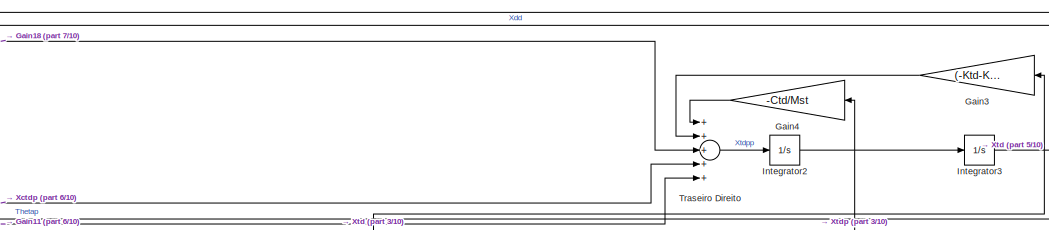
[diagram: Vibração Chassis - part 1/10, top right region]
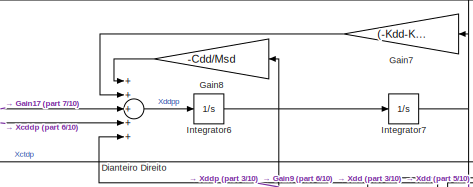
[diagram: Vibração Chassis - part 2/10, top center region]
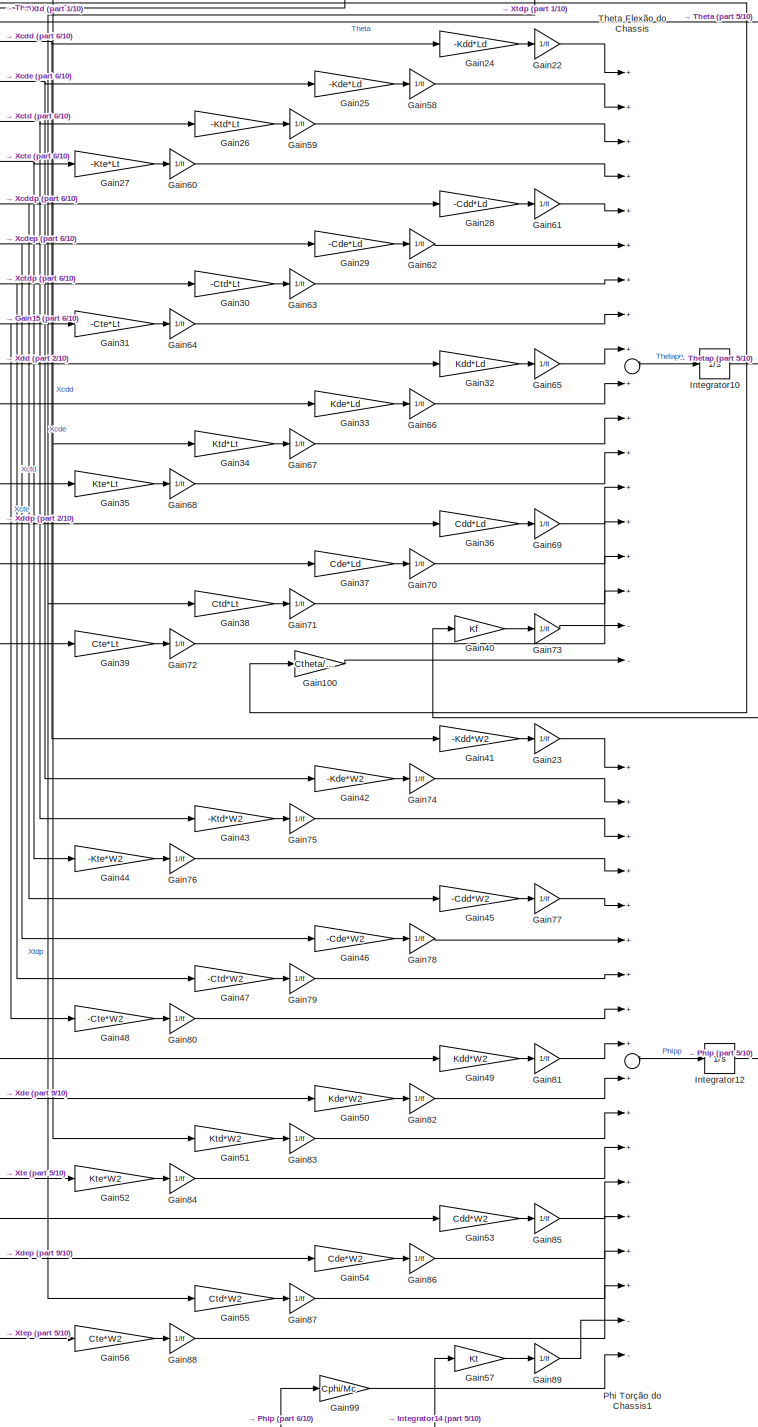
[diagram: Vibração Chassis - part 3/10, middle right region]
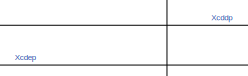
[diagram: Vibração Chassis - part 4/10, top center region]
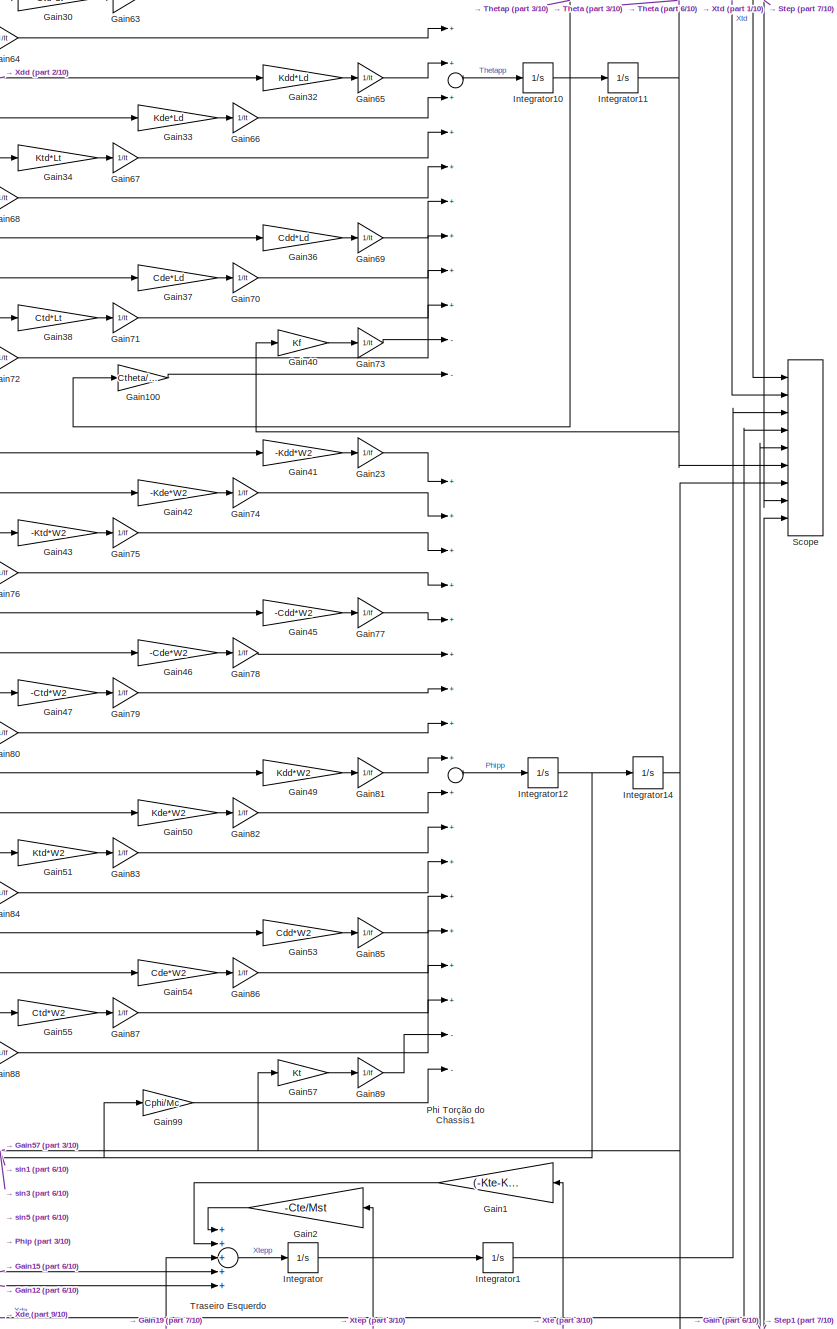
[diagram: Vibração Chassis - part 5/10, middle right region]
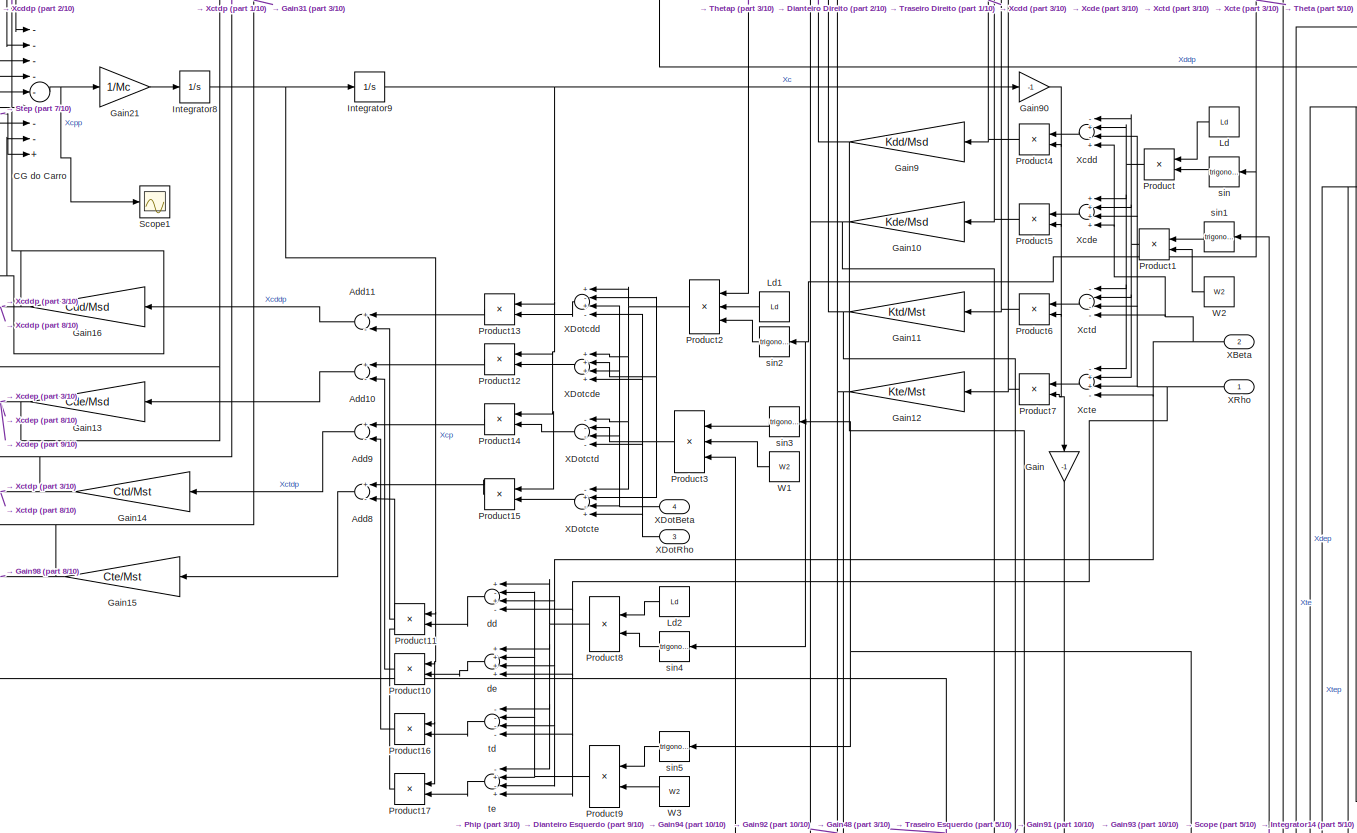
[diagram: Vibração Chassis - part 6/10, central region]
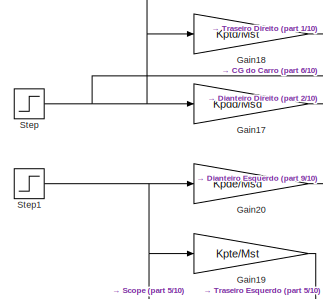
[diagram: Vibração Chassis - part 7/10, middle left region]
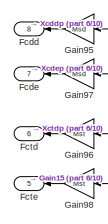
[diagram: Vibração Chassis - part 8/10, middle left region]
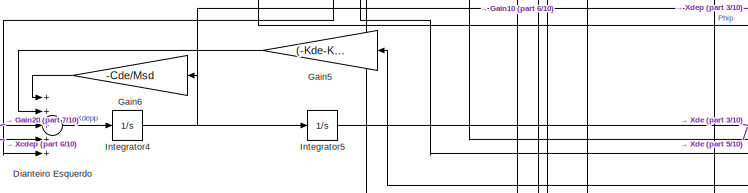
[diagram: Vibração Chassis - part 9/10, bottom center region]
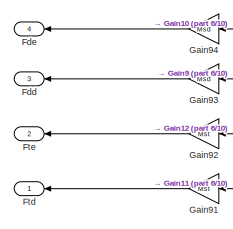
[diagram: Vibração Chassis - part 10/10, bottom center region]
BLOCK [SubSystem] Vibração Chassis
  Ports = [4, 8]
  RequestExecContextInheritance = off
BLOCK [Sum] Vibração Chassis/Add10
  InputSameDT = off
  Inputs = +-
  OutDataTypeStr = Inherit: Inherit via internal rule
  Ports = [2, 1]
  SaturateOnIntegerOverflow = off
BLOCK [Sum] Vibração Chassis/Add11
  InputSameDT = off
  Inputs = +-
  OutDataTypeStr = Inherit: Inherit via internal rule
  Ports = [2, 1]
  SaturateOnIntegerOverflow = off
BLOCK [Sum] Vibração Chassis/Add8
  InputSameDT = off
  Inputs = +-
  OutDataTypeStr = Inherit: Inherit via internal rule
  Ports = [2, 1]
  SaturateOnIntegerOverflow = off
BLOCK [Sum] Vibração Chassis/Add9
  InputSameDT = off
  Inputs = +-
  OutDataTypeStr = Inherit: Inherit via internal rule
  Ports = [2, 1]
  SaturateOnIntegerOverflow = off
BLOCK [Sum] Vibração Chassis/CG do Carro
  InputSameDT = off
  Inputs = --------+
  OutDataTypeStr = Inherit: Inherit via internal rule
  Ports = [9, 1]
  SaturateOnIntegerOverflow = off
BLOCK [Sum] Vibração Chassis/Dianteiro Direito
  InputSameDT = off
  Inputs = +++++
  OutDataTypeStr = Inherit: Inherit via internal rule
  Ports = [5, 1]
  SaturateOnIntegerOverflow = off
BLOCK [Sum] Vibração Chassis/Dianteiro Esquerdo
  InputSameDT = off
  Inputs = +++++
  OutDataTypeStr = Inherit: Inherit via internal rule
  Ports = [5, 1]
  SaturateOnIntegerOverflow = off
BLOCK [Outport] Vibração Chassis/Fcdd
  IconDisplay = Port number
  Port = 8
BLOCK [Outport] Vibração Chassis/Fcde
  IconDisplay = Port number
  Port = 7
BLOCK [Outport] Vibração Chassis/Fctd
  IconDisplay = Port number
  Port = 6
BLOCK [Outport] Vibração Chassis/Fcte
  IconDisplay = Port number
  Port = 5
BLOCK [Outport] Vibração Chassis/Fdd
  IconDisplay = Port number
  Port = 3
BLOCK [Outport] Vibração Chassis/Fde 
  IconDisplay = Port number
  Port = 4
BLOCK [Outport] Vibração Chassis/Ftd
  IconDisplay = Port number
BLOCK [Outport] Vibração Chassis/Fte
  IconDisplay = Port number
  Port = 2
BLOCK [Gain] Vibração Chassis/Gain
  Gain = -1
  OutDataTypeStr = Inherit: Inherit via internal rule
  ParamDataTypeStr = Inherit: Inherit via internal rule
  SaturateOnIntegerOverflow = off
BLOCK [Gain] Vibração Chassis/Gain1
  Gain = (-Kte-Kpte)/Mst
  OutDataTypeStr = Inherit: Inherit via internal rule
  ParamDataTypeStr = Inherit: Inherit via internal rule
  SaturateOnIntegerOverflow = off
BLOCK [Gain] Vibração Chassis/Gain10
  Gain = Kde/Msd
  OutDataTypeStr = Inherit: Inherit via internal rule
  ParamDataTypeStr = Inherit: Inherit via internal rule
  SaturateOnIntegerOverflow = off
BLOCK [Gain] Vibração Chassis/Gain100
  Gain = Ctheta/Mc
  OutDataTypeStr = Inherit: Inherit via internal rule
  ParamDataTypeStr = Inherit: Inherit via internal rule
  SaturateOnIntegerOverflow = off
BLOCK [Gain] Vibração Chassis/Gain11
  Gain = Ktd/Mst
  OutDataTypeStr = Inherit: Inherit via internal rule
  ParamDataTypeStr = Inherit: Inherit via internal rule
  SaturateOnIntegerOverflow = off
BLOCK [Gain] Vibração Chassis/Gain12
  Gain = Kte/Mst
  OutDataTypeStr = Inherit: Inherit via internal rule
  ParamDataTypeStr = Inherit: Inherit via internal rule
  SaturateOnIntegerOverflow = off
BLOCK [Gain] Vibração Chassis/Gain13
  Gain = Cde/Msd
  OutDataTypeStr = Inherit: Inherit via internal rule
  ParamDataTypeStr = Inherit: Inherit via internal rule
  SaturateOnIntegerOverflow = off
BLOCK [Gain] Vibração Chassis/Gain14
  Gain = Ctd/Mst
  OutDataTypeStr = Inherit: Inherit via internal rule
  ParamDataTypeStr = Inherit: Inherit via internal rule
  SaturateOnIntegerOverflow = off
BLOCK [Gain] Vibração Chassis/Gain15
  Gain = Cte/Mst
  OutDataTypeStr = Inherit: Inherit via internal rule
  ParamDataTypeStr = Inherit: Inherit via internal rule
  SaturateOnIntegerOverflow = off
BLOCK [Gain] Vibração Chassis/Gain16
  Gain = Cdd/Msd
  OutDataTypeStr = Inherit: Inherit via internal rule
  ParamDataTypeStr = Inherit: Inherit via internal rule
  SaturateOnIntegerOverflow = off
BLOCK [Gain] Vibração Chassis/Gain17
  Gain = Kpdd/Msd
  OutDataTypeStr = Inherit: Inherit via internal rule
  ParamDataTypeStr = Inherit: Inherit via internal rule
  SaturateOnIntegerOverflow = off
BLOCK [Gain] Vibração Chassis/Gain18
  Gain = Kptd/Mst
  OutDataTypeStr = Inherit: Inherit via internal rule
  ParamDataTypeStr = Inherit: Inherit via internal rule
  SaturateOnIntegerOverflow = off
BLOCK [Gain] Vibração Chassis/Gain19
  Gain = Kpte/Mst
  OutDataTypeStr = Inherit: Inherit via internal rule
  ParamDataTypeStr = Inherit: Inherit via internal rule
  SaturateOnIntegerOverflow = off
BLOCK [Gain] Vibração Chassis/Gain2
  Gain = -Cte/Mst
  OutDataTypeStr = Inherit: Inherit via internal rule
  ParamDataTypeStr = Inherit: Inherit via internal rule
  SaturateOnIntegerOverflow = off
BLOCK [Gain] Vibração Chassis/Gain20
  Gain = Kpde/Msd
  OutDataTypeStr = Inherit: Inherit via internal rule
  ParamDataTypeStr = Inherit: Inherit via internal rule
  SaturateOnIntegerOverflow = off
BLOCK [Gain] Vibração Chassis/Gain21
  Gain = 1/Mc
  OutDataTypeStr = Inherit: Inherit via internal rule
  ParamDataTypeStr = Inherit: Inherit via internal rule
  SaturateOnIntegerOverflow = off
BLOCK [Gain] Vibração Chassis/Gain22
  Gain = 1/It
  OutDataTypeStr = Inherit: Inherit via internal rule
  ParamDataTypeStr = Inherit: Inherit via internal rule
  SaturateOnIntegerOverflow = off
BLOCK [Gain] Vibração Chassis/Gain23
  Gain = 1/If
  OutDataTypeStr = Inherit: Inherit via internal rule
  ParamDataTypeStr = Inherit: Inherit via internal rule
  SaturateOnIntegerOverflow = off
BLOCK [Gain] Vibração Chassis/Gain24
  Gain = -Kdd*Ld
  OutDataTypeStr = Inherit: Inherit via internal rule
  ParamDataTypeStr = Inherit: Inherit via internal rule
  SaturateOnIntegerOverflow = off
BLOCK [Gain] Vibração Chassis/Gain25
  Gain = -Kde*Ld
  OutDataTypeStr = Inherit: Inherit via internal rule
  ParamDataTypeStr = Inherit: Inherit via internal rule
  SaturateOnIntegerOverflow = off
BLOCK [Gain] Vibração Chassis/Gain26
  Gain = -Ktd*Lt
  OutDataTypeStr = Inherit: Inherit via internal rule
  ParamDataTypeStr = Inherit: Inherit via internal rule
  SaturateOnIntegerOverflow = off
BLOCK [Gain] Vibração Chassis/Gain27
  Gain = -Kte*Lt
  OutDataTypeStr = Inherit: Inherit via internal rule
  ParamDataTypeStr = Inherit: Inherit via internal rule
  SaturateOnIntegerOverflow = off
BLOCK [Gain] Vibração Chassis/Gain28
  Gain = -Cdd*Ld
  OutDataTypeStr = Inherit: Inherit via internal rule
  ParamDataTypeStr = Inherit: Inherit via internal rule
  SaturateOnIntegerOverflow = off
BLOCK [Gain] Vibração Chassis/Gain29
  Gain = -Cde*Ld
  OutDataTypeStr = Inherit: Inherit via internal rule
  ParamDataTypeStr = Inherit: Inherit via internal rule
  SaturateOnIntegerOverflow = off
BLOCK [Gain] Vibração Chassis/Gain3
  Gain = (-Ktd-Kptd)/Mst
  OutDataTypeStr = Inherit: Inherit via internal rule
  ParamDataTypeStr = Inherit: Inherit via internal rule
  SaturateOnIntegerOverflow = off
BLOCK [Gain] Vibração Chassis/Gain30
  Gain = -Ctd*Lt
  OutDataTypeStr = Inherit: Inherit via internal rule
  ParamDataTypeStr = Inherit: Inherit via internal rule
  SaturateOnIntegerOverflow = off
BLOCK [Gain] Vibração Chassis/Gain31
  Gain = -Cte*Lt
  OutDataTypeStr = Inherit: Inherit via internal rule
  ParamDataTypeStr = Inherit: Inherit via internal rule
  SaturateOnIntegerOverflow = off
BLOCK [Gain] Vibração Chassis/Gain32
  Gain = Kdd*Ld
  OutDataTypeStr = Inherit: Inherit via internal rule
  ParamDataTypeStr = Inherit: Inherit via internal rule
  SaturateOnIntegerOverflow = off
BLOCK [Gain] Vibração Chassis/Gain33
  Gain = Kde*Ld
  OutDataTypeStr = Inherit: Inherit via internal rule
  ParamDataTypeStr = Inherit: Inherit via internal rule
  SaturateOnIntegerOverflow = off
BLOCK [Gain] Vibração Chassis/Gain34
  Gain = Ktd*Lt
  OutDataTypeStr = Inherit: Inherit via internal rule
  ParamDataTypeStr = Inherit: Inherit via internal rule
  SaturateOnIntegerOverflow = off
BLOCK [Gain] Vibração Chassis/Gain35
  Gain = Kte*Lt
  OutDataTypeStr = Inherit: Inherit via internal rule
  ParamDataTypeStr = Inherit: Inherit via internal rule
  SaturateOnIntegerOverflow = off
BLOCK [Gain] Vibração Chassis/Gain36
  Gain = Cdd*Ld
  OutDataTypeStr = Inherit: Inherit via internal rule
  ParamDataTypeStr = Inherit: Inherit via internal rule
  SaturateOnIntegerOverflow = off
BLOCK [Gain] Vibração Chassis/Gain37
  Gain = Cde*Ld
  OutDataTypeStr = Inherit: Inherit via internal rule
  ParamDataTypeStr = Inherit: Inherit via internal rule
  SaturateOnIntegerOverflow = off
BLOCK [Gain] Vibração Chassis/Gain38
  Gain = Ctd*Lt
  OutDataTypeStr = Inherit: Inherit via internal rule
  ParamDataTypeStr = Inherit: Inherit via internal rule
  SaturateOnIntegerOverflow = off
BLOCK [Gain] Vibração Chassis/Gain39
  Gain = Cte*Lt
  OutDataTypeStr = Inherit: Inherit via internal rule
  ParamDataTypeStr = Inherit: Inherit via internal rule
  SaturateOnIntegerOverflow = off
BLOCK [Gain] Vibração Chassis/Gain4
  Gain = -Ctd/Mst
  OutDataTypeStr = Inherit: Inherit via internal rule
  ParamDataTypeStr = Inherit: Inherit via internal rule
  SaturateOnIntegerOverflow = off
BLOCK [Gain] Vibração Chassis/Gain40
  Gain = Kf
  OutDataTypeStr = Inherit: Inherit via internal rule
  ParamDataTypeStr = Inherit: Inherit via internal rule
  SaturateOnIntegerOverflow = off
BLOCK [Gain] Vibração Chassis/Gain41
  Gain = -Kdd*W2
  OutDataTypeStr = Inherit: Inherit via internal rule
  ParamDataTypeStr = Inherit: Inherit via internal rule
  SaturateOnIntegerOverflow = off
BLOCK [Gain] Vibração Chassis/Gain42
  Gain = -Kde*W2
  OutDataTypeStr = Inherit: Inherit via internal rule
  ParamDataTypeStr = Inherit: Inherit via internal rule
  SaturateOnIntegerOverflow = off
BLOCK [Gain] Vibração Chassis/Gain43
  Gain = -Ktd*W2
  OutDataTypeStr = Inherit: Inherit via internal rule
  ParamDataTypeStr = Inherit: Inherit via internal rule
  SaturateOnIntegerOverflow = off
BLOCK [Gain] Vibração Chassis/Gain44
  Gain = -Kte*W2
  OutDataTypeStr = Inherit: Inherit via internal rule
  ParamDataTypeStr = Inherit: Inherit via internal rule
  SaturateOnIntegerOverflow = off
BLOCK [Gain] Vibração Chassis/Gain45
  Gain = -Cdd*W2
  OutDataTypeStr = Inherit: Inherit via internal rule
  ParamDataTypeStr = Inherit: Inherit via internal rule
  SaturateOnIntegerOverflow = off
BLOCK [Gain] Vibração Chassis/Gain46
  Gain = -Cde*W2
  OutDataTypeStr = Inherit: Inherit via internal rule
  ParamDataTypeStr = Inherit: Inherit via internal rule
  SaturateOnIntegerOverflow = off
BLOCK [Gain] Vibração Chassis/Gain47
  Gain = -Ctd*W2
  OutDataTypeStr = Inherit: Inherit via internal rule
  ParamDataTypeStr = Inherit: Inherit via internal rule
  SaturateOnIntegerOverflow = off
BLOCK [Gain] Vibração Chassis/Gain48
  Gain = -Cte*W2
  OutDataTypeStr = Inherit: Inherit via internal rule
  ParamDataTypeStr = Inherit: Inherit via internal rule
  SaturateOnIntegerOverflow = off
BLOCK [Gain] Vibração Chassis/Gain49
  Gain = Kdd*W2
  OutDataTypeStr = Inherit: Inherit via internal rule
  ParamDataTypeStr = Inherit: Inherit via internal rule
  SaturateOnIntegerOverflow = off
BLOCK [Gain] Vibração Chassis/Gain5
  Gain = (-Kde-Kpde)/Msd
  OutDataTypeStr = Inherit: Inherit via internal rule
  ParamDataTypeStr = Inherit: Inherit via internal rule
  SaturateOnIntegerOverflow = off
BLOCK [Gain] Vibração Chassis/Gain50
  Gain = Kde*W2
  OutDataTypeStr = Inherit: Inherit via internal rule
  ParamDataTypeStr = Inherit: Inherit via internal rule
  SaturateOnIntegerOverflow = off
BLOCK [Gain] Vibração Chassis/Gain51
  Gain = Ktd*W2
  OutDataTypeStr = Inherit: Inherit via internal rule
  ParamDataTypeStr = Inherit: Inherit via internal rule
  SaturateOnIntegerOverflow = off
BLOCK [Gain] Vibração Chassis/Gain52
  Gain = Kte*W2
  OutDataTypeStr = Inherit: Inherit via internal rule
  ParamDataTypeStr = Inherit: Inherit via internal rule
  SaturateOnIntegerOverflow = off
BLOCK [Gain] Vibração Chassis/Gain53
  Gain = Cdd*W2
  OutDataTypeStr = Inherit: Inherit via internal rule
  ParamDataTypeStr = Inherit: Inherit via internal rule
  SaturateOnIntegerOverflow = off
BLOCK [Gain] Vibração Chassis/Gain54
  Gain = Cde*W2
  OutDataTypeStr = Inherit: Inherit via internal rule
  ParamDataTypeStr = Inherit: Inherit via internal rule
  SaturateOnIntegerOverflow = off
BLOCK [Gain] Vibração Chassis/Gain55
  Gain = Ctd*W2
  OutDataTypeStr = Inherit: Inherit via internal rule
  ParamDataTypeStr = Inherit: Inherit via internal rule
  SaturateOnIntegerOverflow = off
BLOCK [Gain] Vibração Chassis/Gain56
  Gain = Cte*W2
  OutDataTypeStr = Inherit: Inherit via internal rule
  ParamDataTypeStr = Inherit: Inherit via internal rule
  SaturateOnIntegerOverflow = off
BLOCK [Gain] Vibração Chassis/Gain57
  Gain = Kt
  OutDataTypeStr = Inherit: Inherit via internal rule
  ParamDataTypeStr = Inherit: Inherit via internal rule
  SaturateOnIntegerOverflow = off
BLOCK [Gain] Vibração Chassis/Gain58
  Gain = 1/It
  OutDataTypeStr = Inherit: Inherit via internal rule
  ParamDataTypeStr = Inherit: Inherit via internal rule
  SaturateOnIntegerOverflow = off
BLOCK [Gain] Vibração Chassis/Gain59
  Gain = 1/It
  OutDataTypeStr = Inherit: Inherit via internal rule
  ParamDataTypeStr = Inherit: Inherit via internal rule
  SaturateOnIntegerOverflow = off
BLOCK [Gain] Vibração Chassis/Gain6
  Gain = -Cde/Msd
  OutDataTypeStr = Inherit: Inherit via internal rule
  ParamDataTypeStr = Inherit: Inherit via internal rule
  SaturateOnIntegerOverflow = off
BLOCK [Gain] Vibração Chassis/Gain60
  Gain = 1/It
  OutDataTypeStr = Inherit: Inherit via internal rule
  ParamDataTypeStr = Inherit: Inherit via internal rule
  SaturateOnIntegerOverflow = off
BLOCK [Gain] Vibração Chassis/Gain61
  Gain = 1/It
  OutDataTypeStr = Inherit: Inherit via internal rule
  ParamDataTypeStr = Inherit: Inherit via internal rule
  SaturateOnIntegerOverflow = off
BLOCK [Gain] Vibração Chassis/Gain62
  Gain = 1/It
  OutDataTypeStr = Inherit: Inherit via internal rule
  ParamDataTypeStr = Inherit: Inherit via internal rule
  SaturateOnIntegerOverflow = off
BLOCK [Gain] Vibração Chassis/Gain63
  Gain = 1/It
  OutDataTypeStr = Inherit: Inherit via internal rule
  ParamDataTypeStr = Inherit: Inherit via internal rule
  SaturateOnIntegerOverflow = off
BLOCK [Gain] Vibração Chassis/Gain64
  Gain = 1/It
  OutDataTypeStr = Inherit: Inherit via internal rule
  ParamDataTypeStr = Inherit: Inherit via internal rule
  SaturateOnIntegerOverflow = off
BLOCK [Gain] Vibração Chassis/Gain65
  Gain = 1/It
  OutDataTypeStr = Inherit: Inherit via internal rule
  ParamDataTypeStr = Inherit: Inherit via internal rule
  SaturateOnIntegerOverflow = off
BLOCK [Gain] Vibração Chassis/Gain66
  Gain = 1/It
  OutDataTypeStr = Inherit: Inherit via internal rule
  ParamDataTypeStr = Inherit: Inherit via internal rule
  SaturateOnIntegerOverflow = off
BLOCK [Gain] Vibração Chassis/Gain67
  Gain = 1/It
  OutDataTypeStr = Inherit: Inherit via internal rule
  ParamDataTypeStr = Inherit: Inherit via internal rule
  SaturateOnIntegerOverflow = off
BLOCK [Gain] Vibração Chassis/Gain68
  Gain = 1/It
  OutDataTypeStr = Inherit: Inherit via internal rule
  ParamDataTypeStr = Inherit: Inherit via internal rule
  SaturateOnIntegerOverflow = off
BLOCK [Gain] Vibração Chassis/Gain69
  Gain = 1/It
  OutDataTypeStr = Inherit: Inherit via internal rule
  ParamDataTypeStr = Inherit: Inherit via internal rule
  SaturateOnIntegerOverflow = off
BLOCK [Gain] Vibração Chassis/Gain7
  Gain = (-Kdd-Kpdd)/Msd
  OutDataTypeStr = Inherit: Inherit via internal rule
  ParamDataTypeStr = Inherit: Inherit via internal rule
  SaturateOnIntegerOverflow = off
BLOCK [Gain] Vibração Chassis/Gain70
  Gain = 1/It
  OutDataTypeStr = Inherit: Inherit via internal rule
  ParamDataTypeStr = Inherit: Inherit via internal rule
  SaturateOnIntegerOverflow = off
BLOCK [Gain] Vibração Chassis/Gain71
  Gain = 1/It
  OutDataTypeStr = Inherit: Inherit via internal rule
  ParamDataTypeStr = Inherit: Inherit via internal rule
  SaturateOnIntegerOverflow = off
BLOCK [Gain] Vibração Chassis/Gain72
  Gain = 1/It
  OutDataTypeStr = Inherit: Inherit via internal rule
  ParamDataTypeStr = Inherit: Inherit via internal rule
  SaturateOnIntegerOverflow = off
BLOCK [Gain] Vibração Chassis/Gain73
  Gain = 1/It
  OutDataTypeStr = Inherit: Inherit via internal rule
  ParamDataTypeStr = Inherit: Inherit via internal rule
  SaturateOnIntegerOverflow = off
BLOCK [Gain] Vibração Chassis/Gain74
  Gain = 1/If
  OutDataTypeStr = Inherit: Inherit via internal rule
  ParamDataTypeStr = Inherit: Inherit via internal rule
  SaturateOnIntegerOverflow = off
BLOCK [Gain] Vibração Chassis/Gain75
  Gain = 1/If
  OutDataTypeStr = Inherit: Inherit via internal rule
  ParamDataTypeStr = Inherit: Inherit via internal rule
  SaturateOnIntegerOverflow = off
BLOCK [Gain] Vibração Chassis/Gain76
  Gain = 1/If
  OutDataTypeStr = Inherit: Inherit via internal rule
  ParamDataTypeStr = Inherit: Inherit via internal rule
  SaturateOnIntegerOverflow = off
BLOCK [Gain] Vibração Chassis/Gain77
  Gain = 1/If
  OutDataTypeStr = Inherit: Inherit via internal rule
  ParamDataTypeStr = Inherit: Inherit via internal rule
  SaturateOnIntegerOverflow = off
BLOCK [Gain] Vibração Chassis/Gain78
  Gain = 1/If
  OutDataTypeStr = Inherit: Inherit via internal rule
  ParamDataTypeStr = Inherit: Inherit via internal rule
  SaturateOnIntegerOverflow = off
BLOCK [Gain] Vibração Chassis/Gain79
  Gain = 1/If
  OutDataTypeStr = Inherit: Inherit via internal rule
  ParamDataTypeStr = Inherit: Inherit via internal rule
  SaturateOnIntegerOverflow = off
BLOCK [Gain] Vibração Chassis/Gain8
  Gain = -Cdd/Msd
  OutDataTypeStr = Inherit: Inherit via internal rule
  ParamDataTypeStr = Inherit: Inherit via internal rule
  SaturateOnIntegerOverflow = off
BLOCK [Gain] Vibração Chassis/Gain80
  Gain = 1/If
  OutDataTypeStr = Inherit: Inherit via internal rule
  ParamDataTypeStr = Inherit: Inherit via internal rule
  SaturateOnIntegerOverflow = off
BLOCK [Gain] Vibração Chassis/Gain81
  Gain = 1/If
  OutDataTypeStr = Inherit: Inherit via internal rule
  ParamDataTypeStr = Inherit: Inherit via internal rule
  SaturateOnIntegerOverflow = off
BLOCK [Gain] Vibração Chassis/Gain82
  Gain = 1/If
  OutDataTypeStr = Inherit: Inherit via internal rule
  ParamDataTypeStr = Inherit: Inherit via internal rule
  SaturateOnIntegerOverflow = off
BLOCK [Gain] Vibração Chassis/Gain83
  Gain = 1/If
  OutDataTypeStr = Inherit: Inherit via internal rule
  ParamDataTypeStr = Inherit: Inherit via internal rule
  SaturateOnIntegerOverflow = off
BLOCK [Gain] Vibração Chassis/Gain84
  Gain = 1/If
  OutDataTypeStr = Inherit: Inherit via internal rule
  ParamDataTypeStr = Inherit: Inherit via internal rule
  SaturateOnIntegerOverflow = off
BLOCK [Gain] Vibração Chassis/Gain85
  Gain = 1/If
  OutDataTypeStr = Inherit: Inherit via internal rule
  ParamDataTypeStr = Inherit: Inherit via internal rule
  SaturateOnIntegerOverflow = off
BLOCK [Gain] Vibração Chassis/Gain86
  Gain = 1/If
  OutDataTypeStr = Inherit: Inherit via internal rule
  ParamDataTypeStr = Inherit: Inherit via internal rule
  SaturateOnIntegerOverflow = off
BLOCK [Gain] Vibração Chassis/Gain87
  Gain = 1/If
  OutDataTypeStr = Inherit: Inherit via internal rule
  ParamDataTypeStr = Inherit: Inherit via internal rule
  SaturateOnIntegerOverflow = off
BLOCK [Gain] Vibração Chassis/Gain88
  Gain = 1/If
  OutDataTypeStr = Inherit: Inherit via internal rule
  ParamDataTypeStr = Inherit: Inherit via internal rule
  SaturateOnIntegerOverflow = off
BLOCK [Gain] Vibração Chassis/Gain89
  Gain = 1/If
  OutDataTypeStr = Inherit: Inherit via internal rule
  ParamDataTypeStr = Inherit: Inherit via internal rule
  SaturateOnIntegerOverflow = off
BLOCK [Gain] Vibração Chassis/Gain9
  Gain = Kdd/Msd
  OutDataTypeStr = Inherit: Inherit via internal rule
  ParamDataTypeStr = Inherit: Inherit via internal rule
  SaturateOnIntegerOverflow = off
BLOCK [Gain] Vibração Chassis/Gain90
  Gain = -1
  OutDataTypeStr = Inherit: Inherit via internal rule
  ParamDataTypeStr = Inherit: Inherit via internal rule
  SaturateOnIntegerOverflow = off
BLOCK [Gain] Vibração Chassis/Gain91
  Gain = Mst
  OutDataTypeStr = Inherit: Inherit via internal rule
  ParamDataTypeStr = Inherit: Inherit via internal rule
  SaturateOnIntegerOverflow = off
BLOCK [Gain] Vibração Chassis/Gain92
  Gain = Mst
  OutDataTypeStr = Inherit: Inherit via internal rule
  ParamDataTypeStr = Inherit: Inherit via internal rule
  SaturateOnIntegerOverflow = off
BLOCK [Gain] Vibração Chassis/Gain93
  Gain = Msd
  OutDataTypeStr = Inherit: Inherit via internal rule
  ParamDataTypeStr = Inherit: Inherit via internal rule
  SaturateOnIntegerOverflow = off
BLOCK [Gain] Vibração Chassis/Gain94
  Gain = Msd
  OutDataTypeStr = Inherit: Inherit via internal rule
  ParamDataTypeStr = Inherit: Inherit via internal rule
  SaturateOnIntegerOverflow = off
BLOCK [Gain] Vibração Chassis/Gain95
  Gain = Msd
  OutDataTypeStr = Inherit: Inherit via internal rule
  ParamDataTypeStr = Inherit: Inherit via internal rule
  SaturateOnIntegerOverflow = off
BLOCK [Gain] Vibração Chassis/Gain96
  Gain = Mst
  OutDataTypeStr = Inherit: Inherit via internal rule
  ParamDataTypeStr = Inherit: Inherit via internal rule
  SaturateOnIntegerOverflow = off
BLOCK [Gain] Vibração Chassis/Gain97
  Gain = Msd
  OutDataTypeStr = Inherit: Inherit via internal rule
  ParamDataTypeStr = Inherit: Inherit via internal rule
  SaturateOnIntegerOverflow = off
BLOCK [Gain] Vibração Chassis/Gain98
  Gain = Mst
  OutDataTypeStr = Inherit: Inherit via internal rule
  ParamDataTypeStr = Inherit: Inherit via internal rule
  SaturateOnIntegerOverflow = off
BLOCK [Gain] Vibração Chassis/Gain99
  Gain = Cphi/Mc
  OutDataTypeStr = Inherit: Inherit via internal rule
  ParamDataTypeStr = Inherit: Inherit via internal rule
  SaturateOnIntegerOverflow = off
BLOCK [Integrator] Vibração Chassis/Integrator
  Ports = [1, 1]
BLOCK [Integrator] Vibração Chassis/Integrator1
  Ports = [1, 1]
BLOCK [Integrator] Vibração Chassis/Integrator10
  Ports = [1, 1]
BLOCK [Integrator] Vibração Chassis/Integrator11
  Ports = [1, 1]
BLOCK [Integrator] Vibração Chassis/Integrator12
  Ports = [1, 1]
BLOCK [Integrator] Vibração Chassis/Integrator14
  LowerSaturationLimit = -0.45
  Ports = [1, 1]
  UpperSaturationLimit = 0.45
BLOCK [Integrator] Vibração Chassis/Integrator2
  Ports = [1, 1]
BLOCK [Integrator] Vibração Chassis/Integrator3
  Ports = [1, 1]
BLOCK [Integrator] Vibração Chassis/Integrator4
  Ports = [1, 1]
BLOCK [Integrator] Vibração Chassis/Integrator5
  Ports = [1, 1]
BLOCK [Integrator] Vibração Chassis/Integrator6
  Ports = [1, 1]
BLOCK [Integrator] Vibração Chassis/Integrator7
  Ports = [1, 1]
BLOCK [Integrator] Vibração Chassis/Integrator8
  Ports = [1, 1]
BLOCK [Integrator] Vibração Chassis/Integrator9
  Ports = [1, 1]
BLOCK [Constant] Vibração Chassis/Ld
  Value = Ld
BLOCK [Constant] Vibração Chassis/Ld1
  Value = Ld
BLOCK [Constant] Vibração Chassis/Ld2
  Value = Ld
BLOCK [Sum] Vibração Chassis/Phi Torção do Chassis1
  InputSameDT = off
  Inputs = ++++++++++++++++--
  OutDataTypeStr = Inherit: Inherit via internal rule
  Ports = [18, 1]
  SaturateOnIntegerOverflow = off
BLOCK [Product] Vibração Chassis/Product
  InputSameDT = off
  OutDataTypeStr = Inherit: Inherit via internal rule
  Ports = [2, 1]
  RndMeth = Floor
  SaturateOnIntegerOverflow = off
BLOCK [Product] Vibração Chassis/Product1
  InputSameDT = off
  OutDataTypeStr = Inherit: Inherit via internal rule
  Ports = [2, 1]
  RndMeth = Floor
  SaturateOnIntegerOverflow = off
BLOCK [Product] Vibração Chassis/Product10
  InputSameDT = off
  OutDataTypeStr = Inherit: Inherit via internal rule
  Ports = [2, 1]
  RndMeth = Floor
  SaturateOnIntegerOverflow = off
BLOCK [Product] Vibração Chassis/Product11
  InputSameDT = off
  OutDataTypeStr = Inherit: Inherit via internal rule
  Ports = [2, 1]
  RndMeth = Floor
  SaturateOnIntegerOverflow = off
BLOCK [Product] Vibração Chassis/Product12
  InputSameDT = off
  OutDataTypeStr = Inherit: Inherit via internal rule
  Ports = [2, 1]
  RndMeth = Floor
  SaturateOnIntegerOverflow = off
BLOCK [Product] Vibração Chassis/Product13
  InputSameDT = off
  OutDataTypeStr = Inherit: Inherit via internal rule
  Ports = [2, 1]
  RndMeth = Floor
  SaturateOnIntegerOverflow = off
BLOCK [Product] Vibração Chassis/Product14
  InputSameDT = off
  OutDataTypeStr = Inherit: Inherit via internal rule
  Ports = [2, 1]
  RndMeth = Floor
  SaturateOnIntegerOverflow = off
BLOCK [Product] Vibração Chassis/Product15
  InputSameDT = off
  OutDataTypeStr = Inherit: Inherit via internal rule
  Ports = [2, 1]
  RndMeth = Floor
  SaturateOnIntegerOverflow = off
BLOCK [Product] Vibração Chassis/Product16
  InputSameDT = off
  OutDataTypeStr = Inherit: Inherit via internal rule
  Ports = [2, 1]
  RndMeth = Floor
  SaturateOnIntegerOverflow = off
BLOCK [Product] Vibração Chassis/Product17
  InputSameDT = off
  OutDataTypeStr = Inherit: Inherit via internal rule
  Ports = [2, 1]
  RndMeth = Floor
  SaturateOnIntegerOverflow = off
BLOCK [Product] Vibração Chassis/Product2
  InputSameDT = off
  Inputs = 3
  OutDataTypeStr = Inherit: Inherit via internal rule
  Ports = [3, 1]
  RndMeth = Floor
  SaturateOnIntegerOverflow = off
BLOCK [Product] Vibração Chassis/Product3
  InputSameDT = off
  Inputs = 3
  OutDataTypeStr = Inherit: Inherit via internal rule
  Ports = [3, 1]
  RndMeth = Floor
  SaturateOnIntegerOverflow = off
BLOCK [Product] Vibração Chassis/Product4
  InputSameDT = off
  OutDataTypeStr = Inherit: Inherit via internal rule
  Ports = [2, 1]
  RndMeth = Floor
  SaturateOnIntegerOverflow = off
BLOCK [Product] Vibração Chassis/Product5
  InputSameDT = off
  OutDataTypeStr = Inherit: Inherit via internal rule
  Ports = [2, 1]
  RndMeth = Floor
  SaturateOnIntegerOverflow = off
BLOCK [Product] Vibração Chassis/Product6
  InputSameDT = off
  OutDataTypeStr = Inherit: Inherit via internal rule
  Ports = [2, 1]
  RndMeth = Floor
  SaturateOnIntegerOverflow = off
BLOCK [Product] Vibração Chassis/Product7
  InputSameDT = off
  OutDataTypeStr = Inherit: Inherit via internal rule
  Ports = [2, 1]
  RndMeth = Floor
  SaturateOnIntegerOverflow = off
BLOCK [Product] Vibração Chassis/Product8
  InputSameDT = off
  OutDataTypeStr = Inherit: Inherit via internal rule
  Ports = [2, 1]
  RndMeth = Floor
  SaturateOnIntegerOverflow = off
BLOCK [Product] Vibração Chassis/Product9
  InputSameDT = off
  OutDataTypeStr = Inherit: Inherit via internal rule
  Ports = [2, 1]
  RndMeth = Floor
  SaturateOnIntegerOverflow = off
BLOCK [TimeScope] Vibração Chassis/Scope
  NumInputPorts = 9
  Ports = [9]
  ScopeSpecificationString = Simulink.scopes.TimeScopeBlockCfg('CurrentConfiguration', extmgr.ConfigurationSet(extmgr.Configuration('Core','General UI',true,'FigureColor',[0.156862745098039 0.156862745098039 0.156862745098039]),extmgr.Configuration('Core','Source UI',true),extmgr.Configuration('Sources','WiredSimulink',true,'DataLoggingDecimation','1','DataLoggingDecimateData',true,'DataLoggingSaveFormat','StructureWithTime')...<+18137ch>
BLOCK [Scope] Vibração Chassis/Scope1
  Floating = off
  NumInputPorts = 1
  Ports = [1]
  SaveName = ScopeData1
BLOCK [Step] Vibração Chassis/Step
  SampleTime = 0
BLOCK [Step] Vibração Chassis/Step1
  After = 2
  SampleTime = 0
  Time = 5
BLOCK [Sum] Vibração Chassis/Theta Flexão do Chassis
  InputSameDT = off
  Inputs = ++++++++++++++++--
  OutDataTypeStr = Inherit: Inherit via internal rule
  Ports = [18, 1]
  SaturateOnIntegerOverflow = off
BLOCK [Sum] Vibração Chassis/Traseiro Direito
  InputSameDT = off
  Inputs = +++++
  OutDataTypeStr = Inherit: Inherit via internal rule
  Ports = [5, 1]
  SaturateOnIntegerOverflow = off
BLOCK [Sum] Vibração Chassis/Traseiro Esquerdo
  InputSameDT = off
  Inputs = +++++
  OutDataTypeStr = Inherit: Inherit via internal rule
  Ports = [5, 1]
  SaturateOnIntegerOverflow = off
BLOCK [Constant] Vibração Chassis/W1
  Value = W2
BLOCK [Constant] Vibração Chassis/W2
  Value = W2
BLOCK [Constant] Vibração Chassis/W3
  Value = W2
BLOCK [Inport] Vibração Chassis/XBeta
  IconDisplay = Port number
  Port = 2
BLOCK [Inport] Vibração Chassis/XDotBeta 
  IconDisplay = Port number
  Port = 4
BLOCK [Inport] Vibração Chassis/XDotRho
  IconDisplay = Port number
  Port = 3
BLOCK [Sum] Vibração Chassis/XDotcdd
  InputSameDT = off
  Inputs = +-+-
  OutDataTypeStr = Inherit: Inherit via internal rule
  Ports = [4, 1]
  SaturateOnIntegerOverflow = off
BLOCK [Sum] Vibração Chassis/XDotcde
  InputSameDT = off
  Inputs = ++++
  OutDataTypeStr = Inherit: Inherit via internal rule
  Ports = [4, 1]
  SaturateOnIntegerOverflow = off
BLOCK [Sum] Vibração Chassis/XDotctd
  InputSameDT = off
  Inputs = ----
  OutDataTypeStr = Inherit: Inherit via internal rule
  Ports = [4, 1]
  SaturateOnIntegerOverflow = off
BLOCK [Sum] Vibração Chassis/XDotcte
  InputSameDT = off
  Inputs = -+-+
  OutDataTypeStr = Inherit: Inherit via internal rule
  Ports = [4, 1]
  SaturateOnIntegerOverflow = off
BLOCK [Inport] Vibração Chassis/XRho
  IconDisplay = Port number
BLOCK [Sum] Vibração Chassis/Xcdd
  InputSameDT = off
  Inputs = -+-+
  OutDataTypeStr = Inherit: Inherit via internal rule
  Ports = [4, 1]
  SaturateOnIntegerOverflow = off
BLOCK [Sum] Vibração Chassis/Xcde
  InputSameDT = off
  Inputs = ++++
  OutDataTypeStr = Inherit: Inherit via internal rule
  Ports = [4, 1]
  SaturateOnIntegerOverflow = off
BLOCK [Sum] Vibração Chassis/Xctd
  InputSameDT = off
  Inputs = ----
  OutDataTypeStr = Inherit: Inherit via internal rule
  Ports = [4, 1]
  SaturateOnIntegerOverflow = off
BLOCK [Sum] Vibração Chassis/Xcte
  InputSameDT = off
  Inputs = -++-
  OutDataTypeStr = Inherit: Inherit via internal rule
  Ports = [4, 1]
  SaturateOnIntegerOverflow = off
BLOCK [Sum] Vibração Chassis/dd
  InputSameDT = off
  Inputs = +-+-
  OutDataTypeStr = Inherit: Inherit via internal rule
  Ports = [4, 1]
  SaturateOnIntegerOverflow = off
BLOCK [Sum] Vibração Chassis/de
  InputSameDT = off
  Inputs = ++++
  OutDataTypeStr = Inherit: Inherit via internal rule
  Ports = [4, 1]
  SaturateOnIntegerOverflow = off
BLOCK [Trigonometry] Vibração Chassis/sin
  Ports = [1, 1]
BLOCK [Trigonometry] Vibração Chassis/sin1
  Ports = [1, 1]
BLOCK [Trigonometry] Vibração Chassis/sin2
  Ports = [1, 1]
BLOCK [Trigonometry] Vibração Chassis/sin3
  Ports = [1, 1]
BLOCK [Trigonometry] Vibração Chassis/sin4
  Ports = [1, 1]
BLOCK [Trigonometry] Vibração Chassis/sin5
  Ports = [1, 1]
BLOCK [Sum] Vibração Chassis/td
  InputSameDT = off
  Inputs = ----
  OutDataTypeStr = Inherit: Inherit via internal rule
  Ports = [4, 1]
  SaturateOnIntegerOverflow = off
BLOCK [Sum] Vibração Chassis/te
  InputSameDT = off
  Inputs = -+-+
  OutDataTypeStr = Inherit: Inherit via internal rule
  Ports = [4, 1]
  SaturateOnIntegerOverflow = off
ANNOTATION Controle de direção : DdotXVL
ANNOTATION Controle de direção : B_x_dd
ANNOTATION Controle de direção : B_y_dd
ANNOTATION Controle de direção : B_y_de
NET Controle de direção /       :1 -> Controle de direção /Sum10:1, Controle de direção /Sum9:1
LINE Controle de direção / 1//I_p :1 -> Controle de direção /Dot_Omega_d:1
LINE Controle de direção / 1//I_p:1 -> Controle de direção /Dot_Omega_t:1
LINE Controle de direção / 1//I_rho :1 -> Controle de direção /DotRho:1
LINE Controle de direção / 10:1 -> Controle de direção /Sum16:2
LINE Controle de direção / 12:1 -> Controle de direção /Sum19:2
LINE Controle de direção / 13:1 -> Controle de direção /Trigonometric Function9:1
NET Controle de direção / 14:1 -> Controle de direção /Sum18:1, Controle de direção /Sum19:1
LINE Controle de direção / 15:1 -> Controle de direção /Trigonometric Function11:1
NET Controle de direção / 17:1 -> Controle de direção / :1, Controle de direção /Sum28:1
NET Controle de direção / 19:1 -> Controle de direção / :1, Controle de direção /Sum31:1
LINE Controle de direção / 1:1 -> Controle de direção /Sum20:2
LINE Controle de direção / 20:1 -> Controle de direção /Sum24:2
NET Controle de direção / 21:1 -> Controle de direção / :1, Controle de direção /Sum23:1
NET Controle de direção / 22:1 -> Controle de direção / :1, Controle de direção /Sum25:1
LINE Controle de direção / 24:1 -> Controle de direção /Trigonometric Function4:1
LINE Controle de direção / 2:1 -> Controle de direção /Sum26:2
LINE Controle de direção / 5:1 -> Controle de direção /Sum14:2
LINE Controle de direção / 6:1 -> Controle de direção /Sum29:2
NET Controle de direção / 7:1 -> Controle de direção /Sum13:1, Controle de direção /Sum14:1
NET Controle de direção / 8:1 -> Controle de direção /Sum15:1, Controle de direção /Sum16:1
LINE Controle de direção / 9:1 -> Controle de direção /Trigonometric Function8:1
NET Controle de direção / :1 -> Controle de direção /Sum10:2, Controle de direção /Sum20:1, Controle de direção /Sum24:1, Controle de direção /Sum26:1, Controle de direção /Sum29:1
LINE Controle de direção / B_x_de :1 -> Controle de direção /Trigonometric Function26:1
LINE Controle de direção / B_x_td:1 -> Controle de direção /Trigonometric Function2:1
LINE Controle de direção / B_x_te:1 -> Controle de direção /Trigonometric Function27:1
LINE Controle de direção / B_y_de:1 -> Controle de direção /Trigonometric Function3:1
LINE Controle de direção / C_y:1 -> Controle de direção /Sin1 :1
NET Controle de direção / Cx:1 -> Controle de direção /Sin1 1:1, Controle de direção /Sin1:1, Controle de direção /Sin2 1:1, Controle de direção /Trigonometric Function28:1
LINE Controle de direção / Cy :1 -> Controle de direção /Sin2 :1
LINE Controle de direção / Cy:1 -> Controle de direção /Sin:1
LINE Controle de direção / RDP:1 -> Controle de direção /Product:2
LINE Controle de direção / Rdp:1 -> Controle de direção /Product1:2
NET Controle de direção /1//DotXVL:1 -> Controle de direção /Product1:1, Controle de direção /Product:1
LINE Controle de direção /1//I_Psi :1 -> Controle de direção /DotPsi:1
LINE Controle de direção /1//Mc 14:1 -> Controle de direção /Trigonometric Function14:1
LINE Controle de direção /1//Mc 16:1 -> Controle de direção /Trigonometric Function16:1
LINE Controle de direção /1//Mc 19:1 -> Controle de direção /Trigonometric Function18:1
LINE Controle de direção /1//Mc 1:1 -> Controle de direção /Sum4:1
LINE Controle de direção /1//Mc 20:1 -> Controle de direção /Trigonometric Function17:1
LINE Controle de direção /1//Mc 22:1 -> Controle de direção /Trigonometric Function20:1
LINE Controle de direção /1//Mc 23:1 -> Controle de direção /Trigonometric Function19:1
LINE Controle de direção /1//Mc 2:1 -> Controle de direção /Sum4:2
LINE Controle de direção /1//Mc 3:1 -> Controle de direção /Sum4:3
LINE Controle de direção /1:1 -> Controle de direção /Trigonometric Function15:1
LINE Controle de direção /Atan 1:1 -> Controle de direção / Cx:1
LINE Controle de direção /Atan :1 -> Controle de direção / Cy :1
LINE Controle de direção /Atan1 1:1 -> Controle de direção / Cx:1
LINE Controle de direção /Atan1 :1 -> Controle de direção / C_y:1
LINE Controle de direção /Atan1:1 -> Controle de direção / Cx:1
LINE Controle de direção /Atan:1 -> Controle de direção / Cy:1
LINE Controle de direção /B_y_dd:1 -> Controle de direção /Trigonometric Function12:1
LINE Controle de direção /B_y_de:1 -> Controle de direção /Trigonometric Function13:1
NET Controle de direção /Beta:1 -> Controle de direção /Scope3:1, Controle de direção /sin2:1, Controle de direção /sin3:1
NET Controle de direção /CFdd :1 -> Controle de direção /Sum32:4, Controle de direção /Sum7:8
NET Controle de direção /CFde :1 -> Controle de direção /Sum32:3, Controle de direção /Sum7:7
NET Controle de direção /CFtd :1 -> Controle de direção /Sum30:4, Controle de direção /Sum7:4
NET Controle de direção /CFte :1 -> Controle de direção /Sum30:3, Controle de direção /Sum7:3
LINE Controle de direção /Constant1:1 -> Controle de direção /1:1
LINE Controle de direção /Constant2:1 -> Controle de direção /1//Mc 20:1
LINE Controle de direção /Constant3:1 -> Controle de direção /1//Mc 23:1
LINE Controle de direção /Constant4:1 -> Controle de direção /Sum22:2
NET Controle de direção /Constant5:1 -> Controle de direção / 17:1, Controle de direção / 19:1, Controle de direção / 21:1, Controle de direção / 22:1, Controle de direção / 24:1, Controle de direção / B_x_de :1, Controle de direção / B_x_td:1, Controle de direção / B_x_te:1
LINE Controle de direção /Constant6:1 -> Controle de direção /Sum27:2
LINE Controle de direção /Constant:1 -> Controle de direção /B_y_de:1
NET Controle de direção /D_dd 1:1 -> Controle de direção /Sum6:2, Controle de direção /Sum8:2, Controle de direção /Sum:2
LINE Controle de direção /D_dd :1 -> Controle de direção /Sum12:1
LINE Controle de direção /D_dd//2:1 -> Controle de direção /Sum12:2
LINE Controle de direção /D_de//2:1 -> Controle de direção /Sum2:2
NET Controle de direção /D_de1:1 -> Controle de direção /Sum6:1, Controle de direção /Sum8:1, Controle de direção /Sum:1
LINE Controle de direção /D_de:1 -> Controle de direção /Sum2:1
LINE Controle de direção /D_td//2:1 -> Controle de direção /Sum17:2
NET Controle de direção /D_td1:1 -> Controle de direção /Scope1:1, Controle de direção /Sum6:4, Controle de direção /Sum8:4, Controle de direção /Sum:4
LINE Controle de direção /D_td:1 -> Controle de direção /Sum17:1
NET Controle de direção /D_te 1:1 -> Controle de direção /Sum6:3, Controle de direção /Sum8:3, Controle de direção /Sum:3
LINE Controle de direção /D_te :1 -> Controle de direção /Sum11:1
LINE Controle de direção /D_te//2:1 -> Controle de direção /Sum11:2
NET Controle de direção /DotBeta:1 -> Controle de direção /Beta:1, Controle de direção /Product4:3
LINE Controle de direção /DotPsi:1 -> Controle de direção /Psi:1
NET Controle de direção /DotRho:1 -> Controle de direção /Product5:1, Controle de direção /Rho:1
LINE Controle de direção /Dot_Omega_d:1 -> Controle de direção / RDP:1
LINE Controle de direção /Dot_Omega_t:1 -> Controle de direção / Rdp:1
LINE Controle de direção /Gain1:1 -> Controle de direção /Integrator2:1
LINE Controle de direção /Gain2:1 -> Controle de direção /Integrator:1
LINE Controle de direção /H_cg   :1 -> Controle de direção /Sum35:1
LINE Controle de direção /H_cg :1 -> Controle de direção /Sum33:3
LINE Controle de direção /I_beta :1 -> Controle de direção /DotBeta:1
LINE Controle de direção /Integrator1:1 -> Controle de direção /Scope5:1
LINE Controle de direção /Integrator2:1 -> Controle de direção /Integrator3:1
LINE Controle de direção /Integrator3:1 -> Controle de direção /Scope2:1
NET Controle de direção /Integrator:1 -> Controle de direção /1//DotXVL:1, Controle de direção /Integrator1:1
NET Controle de direção /KFdd:1 -> Controle de direção /Sum32:1, Controle de direção /Sum7:5
NET Controle de direção /KFde:1 -> Controle de direção /Sum32:2, Controle de direção /Sum7:6
NET Controle de direção /KFtd :1 -> Controle de direção /Sum30:1, Controle de direção /Sum7:1
NET Controle de direção /KFte :1 -> Controle de direção /Sum30:2, Controle de direção /Sum7:2
LINE Controle de direção /Ld :1 -> Controle de direção /Sum33:2
LINE Controle de direção /Lt :1 -> Controle de direção /Sum33:1
LINE Controle de direção /Product1:1 -> Controle de direção /Sum27:1
LINE Controle de direção /Product2:1 -> Controle de direção /XRhoOUT:1
LINE Controle de direção /Product3:1 -> Controle de direção /XBetaOUT:1
LINE Controle de direção /Product4:1 -> Controle de direção /XDotBetaOUT :1
LINE Controle de direção /Product5:1 -> Controle de direção /XDotRhoOUT :1
LINE Controle de direção /Product:1 -> Controle de direção /Sum22:1
LINE Controle de direção /Psi:1 -> Controle de direção /Scope4:1
NET Controle de direção /Rho:1 -> Controle de direção /Scope:1, Controle de direção /sin1:1, Controle de direção /sin4:1
LINE Controle de direção /Sin1 1:1 -> Controle de direção /D_te 1:1
LINE Controle de direção /Sin1 :1 -> Controle de direção /D_te :1
LINE Controle de direção /Sin1:1 -> Controle de direção /D_dd 1:1
LINE Controle de direção /Sin2 1:1 -> Controle de direção /D_de1:1
LINE Controle de direção /Sin2 :1 -> Controle de direção /D_de:1
LINE Controle de direção /Sin:1 -> Controle de direção /D_dd :1
NET Controle de direção /Slip Angle Dianteiro :1 -> Controle de direção /       :1, Controle de direção / 7:1, Controle de direção / B_y_de:1, Controle de direção /B_y_dd:1
NET Controle de direção /Slip Angle Traseiro :1 -> Controle de direção / 14:1, Controle de direção / 15:1, Controle de direção / 8:1, Controle de direção / 9:1
LINE Controle de direção /Sum10:1 -> Controle de direção /Atan :1
NET Controle de direção /Sum11:1 -> Controle de direção /Sum1:3, Controle de direção /Sum34:2, Controle de direção /Sum5:1
NET Controle de direção /Sum12:1 -> Controle de direção /Sum1:2, Controle de direção /Sum34:3, Controle de direção /Sum3:2
LINE Controle de direção /Sum13:1 -> Controle de direção / 5:1
LINE Controle de direção /Sum14:1 -> Controle de direção /Atan:1
LINE Controle de direção /Sum15:1 -> Controle de direção / 10:1
LINE Controle de direção /Sum16:1 -> Controle de direção /Atan1 :1
NET Controle de direção /Sum17:1 -> Controle de direção /Sum1:4, Controle de direção /Sum34:1, Controle de direção /Sum5:2
LINE Controle de direção /Sum18:1 -> Controle de direção / 12:1
LINE Controle de direção /Sum19:1 -> Controle de direção /Trigonometric Function10:1
NET Controle de direção /Sum1:1 -> Controle de direção /Gain1:1, Controle de direção /Scope6:1
LINE Controle de direção /Sum20:1 -> Controle de direção /Atan 1:1
LINE Controle de direção /Sum21:1 -> Controle de direção / 1//I_p:1
LINE Controle de direção /Sum23:1 -> Controle de direção / 20:1
LINE Controle de direção /Sum24:1 -> Controle de direção /Atan1:1
LINE Controle de direção /Sum25:1 -> Controle de direção / 2:1
LINE Controle de direção /Sum26:1 -> Controle de direção /Atan1 1:1
LINE Controle de direção /Sum28:1 -> Controle de direção / 6:1
LINE Controle de direção /Sum29:1 -> Controle de direção /Trigonometric Function1:1
NET Controle de direção /Sum2:1 -> Controle de direção /Sum1:1, Controle de direção /Sum34:4, Controle de direção /Sum3:1
LINE Controle de direção /Sum30:1 -> Controle de direção /Lt :1
LINE Controle de direção /Sum31:1 -> Controle de direção / 1:1
LINE Controle de direção /Sum32:1 -> Controle de direção /Ld :1
LINE Controle de direção /Sum33:1 -> Controle de direção /I_beta :1
LINE Controle de direção /Sum34:1 -> Controle de direção /H_cg   :1
LINE Controle de direção /Sum35:1 -> Controle de direção / 1//I_rho :1
LINE Controle de direção /Sum3:1 -> Controle de direção /1//Mc 1:1
LINE Controle de direção /Sum4:1 -> Controle de direção /1//I_Psi :1
LINE Controle de direção /Sum5:1 -> Controle de direção /1//Mc 2:1
LINE Controle de direção /Sum6:1 -> Controle de direção /1//Mc 3:1
LINE Controle de direção /Sum7:1 -> Controle de direção /W2 :1
LINE Controle de direção /Sum8:1 -> Controle de direção /H_cg :1
LINE Controle de direção /Sum9:1 -> Controle de direção / :1
NET Controle de direção /Sum:1 -> Controle de direção /Gain2:1, Controle de direção /Scope8:1
LINE Controle de direção /Torque Mecânico:1 -> Controle de direção /Sum21:2
NET Controle de direção /Torque de Freio:1 -> Controle de direção / 1//I_p :1, Controle de direção /Sum21:1
LINE Controle de direção /Trigonometric Function10:1 -> Controle de direção / 13:1
LINE Controle de direção /Trigonometric Function11:1 -> Controle de direção /Sum18:2
LINE Controle de direção /Trigonometric Function12:1 -> Controle de direção /Sum13:2
LINE Controle de direção /Trigonometric Function13:1 -> Controle de direção /1//Mc 14:1
LINE Controle de direção /Trigonometric Function14:1 -> Controle de direção /D_de//2:1
LINE Controle de direção /Trigonometric Function15:1 -> Controle de direção /1//Mc 16:1
LINE Controle de direção /Trigonometric Function16:1 -> Controle de direção /D_dd//2:1
LINE Controle de direção /Trigonometric Function17:1 -> Controle de direção /1//Mc 19:1
LINE Controle de direção /Trigonometric Function18:1 -> Controle de direção /D_te//2:1
LINE Controle de direção /Trigonometric Function19:1 -> Controle de direção /1//Mc 22:1
LINE Controle de direção /Trigonometric Function1:1 -> Controle de direção / Cx:1
LINE Controle de direção /Trigonometric Function20:1 -> Controle de direção /D_td//2:1
LINE Controle de direção /Trigonometric Function26:1 -> Controle de direção /Sum31:2
LINE Controle de direção /Trigonometric Function27:1 -> Controle de direção /Sum25:2
LINE Controle de direção /Trigonometric Function28:1 -> Controle de direção /D_td1:1
LINE Controle de direção /Trigonometric Function2:1 -> Controle de direção /Sum28:2
LINE Controle de direção /Trigonometric Function3:1 -> Controle de direção /Sum9:2
LINE Controle de direção /Trigonometric Function4:1 -> Controle de direção /Sum23:2
LINE Controle de direção /Trigonometric Function8:1 -> Controle de direção /Sum15:2
LINE Controle de direção /Trigonometric Function9:1 -> Controle de direção /D_td:1
LINE Controle de direção /W1:1 -> Controle de direção /Product3:2
LINE Controle de direção /W2 :1 -> Controle de direção /Sum35:2
LINE Controle de direção /W2:1 -> Controle de direção /Product2:2
LINE Controle de direção /W3:1 -> Controle de direção /Product4:2
LINE Controle de direção /W4:1 -> Controle de direção /Product5:3
LINE Controle de direção /sin1:1 -> Controle de direção /Product2:1
LINE Controle de direção /sin2:1 -> Controle de direção /Product3:1
LINE Controle de direção /sin3:1 -> Controle de direção /Product4:1
LINE Controle de direção /sin4:1 -> Controle de direção /Product5:2
LINE Controle de direção :1 -> Vibração Chassis:1
LINE Controle de direção :2 -> Vibração Chassis:2
LINE Controle de direção :3 -> Vibração Chassis:3
LINE Controle de direção :4 -> Vibração Chassis:4
LINE Vibração Chassis/Add10:1 -> Vibração Chassis/Gain13:1
LINE Vibração Chassis/Add11:1 -> Vibração Chassis/Gain16:1
LINE Vibração Chassis/Add8:1 -> Vibração Chassis/Gain15:1
LINE Vibração Chassis/Add9:1 -> Vibração Chassis/Gain14:1
NET Vibração Chassis/CG do Carro:1 -> Vibração Chassis/Gain21:1, Vibração Chassis/Scope1:1
LINE Vibração Chassis/Dianteiro Direito:1 -> Vibração Chassis/Integrator6:1
LINE Vibração Chassis/Dianteiro Esquerdo:1 -> Vibração Chassis/Integrator4:1
LINE Vibração Chassis/Gain100:1 -> Vibração Chassis/Theta Flexão do Chassis:18
NET Vibração Chassis/Gain10:1 -> Vibração Chassis/CG do Carro:2, Vibração Chassis/Dianteiro Esquerdo:5, Vibração Chassis/Gain94:1
NET Vibração Chassis/Gain11:1 -> Vibração Chassis/CG do Carro:3, Vibração Chassis/Gain91:1, Vibração Chassis/Traseiro Direito:5
NET Vibração Chassis/Gain12:1 -> Vibração Chassis/CG do Carro:4, Vibração Chassis/Gain92:1, Vibração Chassis/Traseiro Esquerdo:5
NET Vibração Chassis/Gain13:1 -> Vibração Chassis/CG do Carro:7, Vibração Chassis/Dianteiro Esquerdo:4, Vibração Chassis/Gain29:1, Vibração Chassis/Gain46:1, Vibração Chassis/Gain97:1
NET Vibração Chassis/Gain14:1 -> Vibração Chassis/CG do Carro:6, Vibração Chassis/Gain30:1, Vibração Chassis/Gain47:1, Vibração Chassis/Gain96:1, Vibração Chassis/Traseiro Direito:4
NET Vibração Chassis/Gain15:1 -> Vibração Chassis/CG do Carro:5, Vibração Chassis/Gain31:1, Vibração Chassis/Gain48:1, Vibração Chassis/Gain98:1, Vibração Chassis/Traseiro Esquerdo:4
NET Vibração Chassis/Gain16:1 -> Vibração Chassis/CG do Carro:8, Vibração Chassis/Dianteiro Direito:4, Vibração Chassis/Gain28:1, Vibração Chassis/Gain45:1, Vibração Chassis/Gain95:1
LINE Vibração Chassis/Gain17:1 -> Vibração Chassis/Dianteiro Direito:3
LINE Vibração Chassis/Gain18:1 -> Vibração Chassis/Traseiro Direito:3
LINE Vibração Chassis/Gain19:1 -> Vibração Chassis/Traseiro Esquerdo:3
LINE Vibração Chassis/Gain1:1 -> Vibração Chassis/Traseiro Esquerdo:2
LINE Vibração Chassis/Gain20:1 -> Vibração Chassis/Dianteiro Esquerdo:3
LINE Vibração Chassis/Gain21:1 -> Vibração Chassis/Integrator8:1
LINE Vibração Chassis/Gain22:1 -> Vibração Chassis/Theta Flexão do Chassis:1
LINE Vibração Chassis/Gain23:1 -> Vibração Chassis/Phi Torção do Chassis1:1
LINE Vibração Chassis/Gain24:1 -> Vibração Chassis/Gain22:1
LINE Vibração Chassis/Gain25:1 -> Vibração Chassis/Gain58:1
LINE Vibração Chassis/Gain26:1 -> Vibração Chassis/Gain59:1
LINE Vibração Chassis/Gain27:1 -> Vibração Chassis/Gain60:1
LINE Vibração Chassis/Gain28:1 -> Vibração Chassis/Gain61:1
LINE Vibração Chassis/Gain29:1 -> Vibração Chassis/Gain62:1
LINE Vibração Chassis/Gain2:1 -> Vibração Chassis/Traseiro Esquerdo:1
LINE Vibração Chassis/Gain30:1 -> Vibração Chassis/Gain63:1
LINE Vibração Chassis/Gain31:1 -> Vibração Chassis/Gain64:1
LINE Vibração Chassis/Gain32:1 -> Vibração Chassis/Gain65:1
LINE Vibração Chassis/Gain33:1 -> Vibração Chassis/Gain66:1
LINE Vibração Chassis/Gain34:1 -> Vibração Chassis/Gain67:1
LINE Vibração Chassis/Gain35:1 -> Vibração Chassis/Gain68:1
LINE Vibração Chassis/Gain36:1 -> Vibração Chassis/Gain69:1
LINE Vibração Chassis/Gain37:1 -> Vibração Chassis/Gain70:1
LINE Vibração Chassis/Gain38:1 -> Vibração Chassis/Gain71:1
LINE Vibração Chassis/Gain39:1 -> Vibração Chassis/Gain72:1
LINE Vibração Chassis/Gain3:1 -> Vibração Chassis/Traseiro Direito:2
LINE Vibração Chassis/Gain40:1 -> Vibração Chassis/Gain73:1
LINE Vibração Chassis/Gain41:1 -> Vibração Chassis/Gain23:1
LINE Vibração Chassis/Gain42:1 -> Vibração Chassis/Gain74:1
LINE Vibração Chassis/Gain43:1 -> Vibração Chassis/Gain75:1
LINE Vibração Chassis/Gain44:1 -> Vibração Chassis/Gain76:1
LINE Vibração Chassis/Gain45:1 -> Vibração Chassis/Gain77:1
LINE Vibração Chassis/Gain46:1 -> Vibração Chassis/Gain78:1
LINE Vibração Chassis/Gain47:1 -> Vibração Chassis/Gain79:1
LINE Vibração Chassis/Gain48:1 -> Vibração Chassis/Gain80:1
LINE Vibração Chassis/Gain49:1 -> Vibração Chassis/Gain81:1
LINE Vibração Chassis/Gain4:1 -> Vibração Chassis/Traseiro Direito:1
LINE Vibração Chassis/Gain50:1 -> Vibração Chassis/Gain82:1
LINE Vibração Chassis/Gain51:1 -> Vibração Chassis/Gain83:1
LINE Vibração Chassis/Gain52:1 -> Vibração Chassis/Gain84:1
LINE Vibração Chassis/Gain53:1 -> Vibração Chassis/Gain85:1
LINE Vibração Chassis/Gain54:1 -> Vibração Chassis/Gain86:1
LINE Vibração Chassis/Gain55:1 -> Vibração Chassis/Gain87:1
LINE Vibração Chassis/Gain56:1 -> Vibração Chassis/Gain88:1
LINE Vibração Chassis/Gain57:1 -> Vibração Chassis/Gain89:1
LINE Vibração Chassis/Gain58:1 -> Vibração Chassis/Theta Flexão do Chassis:2
LINE Vibração Chassis/Gain59:1 -> Vibração Chassis/Theta Flexão do Chassis:3
LINE Vibração Chassis/Gain5:1 -> Vibração Chassis/Dianteiro Esquerdo:2
LINE Vibração Chassis/Gain60:1 -> Vibração Chassis/Theta Flexão do Chassis:4
LINE Vibração Chassis/Gain61:1 -> Vibração Chassis/Theta Flexão do Chassis:5
LINE Vibração Chassis/Gain62:1 -> Vibração Chassis/Theta Flexão do Chassis:6
LINE Vibração Chassis/Gain63:1 -> Vibração Chassis/Theta Flexão do Chassis:7
LINE Vibração Chassis/Gain64:1 -> Vibração Chassis/Theta Flexão do Chassis:8
LINE Vibração Chassis/Gain65:1 -> Vibração Chassis/Theta Flexão do Chassis:9
LINE Vibração Chassis/Gain66:1 -> Vibração Chassis/Theta Flexão do Chassis:10
LINE Vibração Chassis/Gain67:1 -> Vibração Chassis/Theta Flexão do Chassis:11
LINE Vibração Chassis/Gain68:1 -> Vibração Chassis/Theta Flexão do Chassis:12
LINE Vibração Chassis/Gain69:1 -> Vibração Chassis/Theta Flexão do Chassis:13
LINE Vibração Chassis/Gain6:1 -> Vibração Chassis/Dianteiro Esquerdo:1
LINE Vibração Chassis/Gain70:1 -> Vibração Chassis/Theta Flexão do Chassis:14
LINE Vibração Chassis/Gain71:1 -> Vibração Chassis/Theta Flexão do Chassis:15
LINE Vibração Chassis/Gain72:1 -> Vibração Chassis/Theta Flexão do Chassis:16
LINE Vibração Chassis/Gain73:1 -> Vibração Chassis/Theta Flexão do Chassis:17
LINE Vibração Chassis/Gain74:1 -> Vibração Chassis/Phi Torção do Chassis1:2
LINE Vibração Chassis/Gain75:1 -> Vibração Chassis/Phi Torção do Chassis1:3
LINE Vibração Chassis/Gain76:1 -> Vibração Chassis/Phi Torção do Chassis1:4
LINE Vibração Chassis/Gain77:1 -> Vibração Chassis/Phi Torção do Chassis1:5
LINE Vibração Chassis/Gain78:1 -> Vibração Chassis/Phi Torção do Chassis1:6
LINE Vibração Chassis/Gain79:1 -> Vibração Chassis/Phi Torção do Chassis1:7
LINE Vibração Chassis/Gain7:1 -> Vibração Chassis/Dianteiro Direito:2
LINE Vibração Chassis/Gain80:1 -> Vibração Chassis/Phi Torção do Chassis1:8
LINE Vibração Chassis/Gain81:1 -> Vibração Chassis/Phi Torção do Chassis1:9
LINE Vibração Chassis/Gain82:1 -> Vibração Chassis/Phi Torção do Chassis1:10
LINE Vibração Chassis/Gain83:1 -> Vibração Chassis/Phi Torção do Chassis1:11
LINE Vibração Chassis/Gain84:1 -> Vibração Chassis/Phi Torção do Chassis1:12
LINE Vibração Chassis/Gain85:1 -> Vibração Chassis/Phi Torção do Chassis1:13
LINE Vibração Chassis/Gain86:1 -> Vibração Chassis/Phi Torção do Chassis1:14
LINE Vibração Chassis/Gain87:1 -> Vibração Chassis/Phi Torção do Chassis1:15
LINE Vibração Chassis/Gain88:1 -> Vibração Chassis/Phi Torção do Chassis1:16
LINE Vibração Chassis/Gain89:1 -> Vibração Chassis/Phi Torção do Chassis1:17
LINE Vibração Chassis/Gain8:1 -> Vibração Chassis/Dianteiro Direito:1
NET Vibração Chassis/Gain90:1 -> Vibração Chassis/Gain:1, Vibração Chassis/Product4:2, Vibração Chassis/Product5:2, Vibração Chassis/Product6:2, Vibração Chassis/Product7:2
LINE Vibração Chassis/Gain91:1 -> Vibração Chassis/Ftd:1
LINE Vibração Chassis/Gain92:1 -> Vibração Chassis/Fte:1
LINE Vibração Chassis/Gain93:1 -> Vibração Chassis/Fdd:1
LINE Vibração Chassis/Gain94:1 -> Vibração Chassis/Fde :1
LINE Vibração Chassis/Gain95:1 -> Vibração Chassis/Fcdd:1
LINE Vibração Chassis/Gain96:1 -> Vibração Chassis/Fctd:1
LINE Vibração Chassis/Gain97:1 -> Vibração Chassis/Fcde:1
LINE Vibração Chassis/Gain98:1 -> Vibração Chassis/Fcte:1
LINE Vibração Chassis/Gain99:1 -> Vibração Chassis/Phi Torção do Chassis1:18
NET Vibração Chassis/Gain9:1 -> Vibração Chassis/CG do Carro:1, Vibração Chassis/Dianteiro Direito:5, Vibração Chassis/Gain93:1
LINE Vibração Chassis/Gain:1 -> Vibração Chassis/Scope:5
NET Vibração Chassis/Integrator10:1 -> Vibração Chassis/Gain100:1, Vibração Chassis/Integrator11:1, Vibração Chassis/Product2:1
NET Vibração Chassis/Integrator11:1 -> Vibração Chassis/Gain40:1, Vibração Chassis/Scope:6, Vibração Chassis/sin2:1, Vibração Chassis/sin4:1, Vibração Chassis/sin:1
NET Vibração Chassis/Integrator12:1 -> Vibração Chassis/Gain99:1, Vibração Chassis/Integrator14:1, Vibração Chassis/Product3:3
NET Vibração Chassis/Integrator14:1 -> Vibração Chassis/Gain57:1, Vibração Chassis/Scope:7, Vibração Chassis/sin1:1, Vibração Chassis/sin3:1, Vibração Chassis/sin5:1
NET Vibração Chassis/Integrator1:1 -> Vibração Chassis/Gain1:1, Vibração Chassis/Gain35:1, Vibração Chassis/Gain52:1, Vibração Chassis/Scope:3
NET Vibração Chassis/Integrator2:1 -> Vibração Chassis/Gain38:1, Vibração Chassis/Gain4:1, Vibração Chassis/Gain55:1, Vibração Chassis/Integrator3:1
NET Vibração Chassis/Integrator3:1 -> Vibração Chassis/Gain34:1, Vibração Chassis/Gain3:1, Vibração Chassis/Gain51:1, Vibração Chassis/Scope:2
NET Vibração Chassis/Integrator4:1 -> Vibração Chassis/Gain37:1, Vibração Chassis/Gain54:1, Vibração Chassis/Gain6:1, Vibração Chassis/Integrator5:1
NET Vibração Chassis/Integrator5:1 -> Vibração Chassis/Gain33:1, Vibração Chassis/Gain50:1, Vibração Chassis/Gain5:1, Vibração Chassis/Scope:4
NET Vibração Chassis/Integrator6:1 -> Vibração Chassis/Gain36:1, Vibração Chassis/Gain53:1, Vibração Chassis/Gain8:1, Vibração Chassis/Integrator7:1
NET Vibração Chassis/Integrator7:1 -> Vibração Chassis/Gain32:1, Vibração Chassis/Gain49:1, Vibração Chassis/Gain7:1, Vibração Chassis/Scope:1
NET Vibração Chassis/Integrator8:1 -> Vibração Chassis/Integrator9:1, Vibração Chassis/Product10:1, Vibração Chassis/Product11:1, Vibração Chassis/Product16:1, Vibração Chassis/Product17:1
NET Vibração Chassis/Integrator9:1 -> Vibração Chassis/Gain90:1, Vibração Chassis/Product12:1, Vibração Chassis/Product13:1, Vibração Chassis/Product14:1, Vibração Chassis/Product15:1
NET Vibração Chassis/Integrator:1 -> Vibração Chassis/Gain2:1, Vibração Chassis/Gain39:1, Vibração Chassis/Gain56:1, Vibração Chassis/Integrator1:1
LINE Vibração Chassis/Ld1:1 -> Vibração Chassis/Product2:2
LINE Vibração Chassis/Ld2:1 -> Vibração Chassis/Product8:1
LINE Vibração Chassis/Ld:1 -> Vibração Chassis/Product:1
LINE Vibração Chassis/Phi Torção do Chassis1:1 -> Vibração Chassis/Integrator12:1
LINE Vibração Chassis/Product10:1 -> Vibração Chassis/Add10:2
LINE Vibração Chassis/Product11:1 -> Vibração Chassis/Add11:2
LINE Vibração Chassis/Product12:1 -> Vibração Chassis/Add10:1
LINE Vibração Chassis/Product13:1 -> Vibração Chassis/Add11:1
LINE Vibração Chassis/Product14:1 -> Vibração Chassis/Add9:1
LINE Vibração Chassis/Product15:1 -> Vibração Chassis/Add8:1
LINE Vibração Chassis/Product16:1 -> Vibração Chassis/Add9:2
LINE Vibração Chassis/Product17:1 -> Vibração Chassis/Add8:2
NET Vibração Chassis/Product1:1 -> Vibração Chassis/Xcdd:1, Vibração Chassis/Xcde:2, Vibração Chassis/Xctd:2, Vibração Chassis/Xcte:2
NET Vibração Chassis/Product2:1 -> Vibração Chassis/XDotcdd:1, Vibração Chassis/XDotcde:1, Vibração Chassis/XDotctd:1, Vibração Chassis/XDotcte:1
NET Vibração Chassis/Product3:1 -> Vibração Chassis/XDotcdd:2, Vibração Chassis/XDotcde:2, Vibração Chassis/XDotctd:2, Vibração Chassis/XDotcte:2
NET Vibração Chassis/Product4:1 -> Vibração Chassis/Gain24:1, Vibração Chassis/Gain41:1, Vibração Chassis/Gain9:1
NET Vibração Chassis/Product5:1 -> Vibração Chassis/Gain10:1, Vibração Chassis/Gain25:1, Vibração Chassis/Gain42:1
NET Vibração Chassis/Product6:1 -> Vibração Chassis/Gain11:1, Vibração Chassis/Gain26:1, Vibração Chassis/Gain43:1
NET Vibração Chassis/Product7:1 -> Vibração Chassis/Gain12:1, Vibração Chassis/Gain27:1, Vibração Chassis/Gain44:1
NET Vibração Chassis/Product8:1 -> Vibração Chassis/dd:1, Vibração Chassis/de:1, Vibração Chassis/td:1, Vibração Chassis/te:1
NET Vibração Chassis/Product9:1 -> Vibração Chassis/dd:2, Vibração Chassis/de:2, Vibração Chassis/td:2, Vibração Chassis/te:2
NET Vibração Chassis/Product:1 -> Vibração Chassis/Xcdd:2, Vibração Chassis/Xcde:1, Vibração Chassis/Xctd:1, Vibração Chassis/Xcte:1
NET Vibração Chassis/Step1:1 -> Vibração Chassis/Gain19:1, Vibração Chassis/Gain20:1, Vibração Chassis/Scope:9
NET Vibração Chassis/Step:1 -> Vibração Chassis/CG do Carro:9, Vibração Chassis/Gain17:1, Vibração Chassis/Gain18:1, Vibração Chassis/Scope:8
LINE Vibração Chassis/Theta Flexão do Chassis:1 -> Vibração Chassis/Integrator10:1
LINE Vibração Chassis/Traseiro Direito:1 -> Vibração Chassis/Integrator2:1
LINE Vibração Chassis/Traseiro Esquerdo:1 -> Vibração Chassis/Integrator:1
LINE Vibração Chassis/W1:1 -> Vibração Chassis/Product3:2
LINE Vibração Chassis/W2:1 -> Vibração Chassis/Product1:2
LINE Vibração Chassis/W3:1 -> Vibração Chassis/Product9:2
NET Vibração Chassis/XBeta:1 -> Vibração Chassis/Xcdd:4, Vibração Chassis/Xcde:4, Vibração Chassis/Xctd:4, Vibração Chassis/Xcte:4, Vibração Chassis/dd:3, Vibração Chassis/de:3, Vibração Chassis/td:3, Vibração Chassis/te:3
NET Vibração Chassis/XDotBeta :1 -> Vibração Chassis/XDotcdd:3, Vibração Chassis/XDotcde:3, Vibração Chassis/XDotctd:3, Vibração Chassis/XDotcte:3
NET Vibração Chassis/XDotRho:1 -> Vibração Chassis/XDotcdd:4, Vibração Chassis/XDotcde:4, Vibração Chassis/XDotctd:4, Vibração Chassis/XDotcte:4
LINE Vibração Chassis/XDotcdd:1 -> Vibração Chassis/Product13:2
LINE Vibração Chassis/XDotcde:1 -> Vibração Chassis/Product12:2
LINE Vibração Chassis/XDotctd:1 -> Vibração Chassis/Product14:2
LINE Vibração Chassis/XDotcte:1 -> Vibração Chassis/Product15:2
NET Vibração Chassis/XRho:1 -> Vibração Chassis/Xcdd:3, Vibração Chassis/Xcde:3, Vibração Chassis/Xctd:3, Vibração Chassis/Xcte:3, Vibração Chassis/dd:4, Vibração Chassis/de:4, Vibração Chassis/td:4, Vibração Chassis/te:4
LINE Vibração Chassis/Xcdd:1 -> Vibração Chassis/Product4:1
LINE Vibração Chassis/Xcde:1 -> Vibração Chassis/Product5:1
LINE Vibração Chassis/Xctd:1 -> Vibração Chassis/Product6:1
LINE Vibração Chassis/Xcte:1 -> Vibração Chassis/Product7:1
LINE Vibração Chassis/dd:1 -> Vibração Chassis/Product11:2
LINE Vibração Chassis/de:1 -> Vibração Chassis/Product10:2
LINE Vibração Chassis/sin1:1 -> Vibração Chassis/Product1:1
LINE Vibração Chassis/sin2:1 -> Vibração Chassis/Product2:3
LINE Vibração Chassis/sin3:1 -> Vibração Chassis/Product3:1
LINE Vibração Chassis/sin4:1 -> Vibração Chassis/Product8:2
LINE Vibração Chassis/sin5:1 -> Vibração Chassis/Product9:1
LINE Vibração Chassis/sin:1 -> Vibração Chassis/Product:2
LINE Vibração Chassis/td:1 -> Vibração Chassis/Product16:2
LINE Vibração Chassis/te:1 -> Vibração Chassis/Product17:2
LINE Vibração Chassis:1 -> Controle de direção :1
LINE Vibração Chassis:2 -> Controle de direção :2
LINE Vibração Chassis:3 -> Controle de direção :3
LINE Vibração Chassis:4 -> Controle de direção :4
LINE Vibração Chassis:5 -> Controle de direção :5
LINE Vibração Chassis:6 -> Controle de direção :6
LINE Vibração Chassis:7 -> Controle de direção :7
LINE Vibração Chassis:8 -> Controle de direção :8
note: NET lines group one-source signal fan-out (src -> all destinations, sorted); 1:1 wires keep LINE
